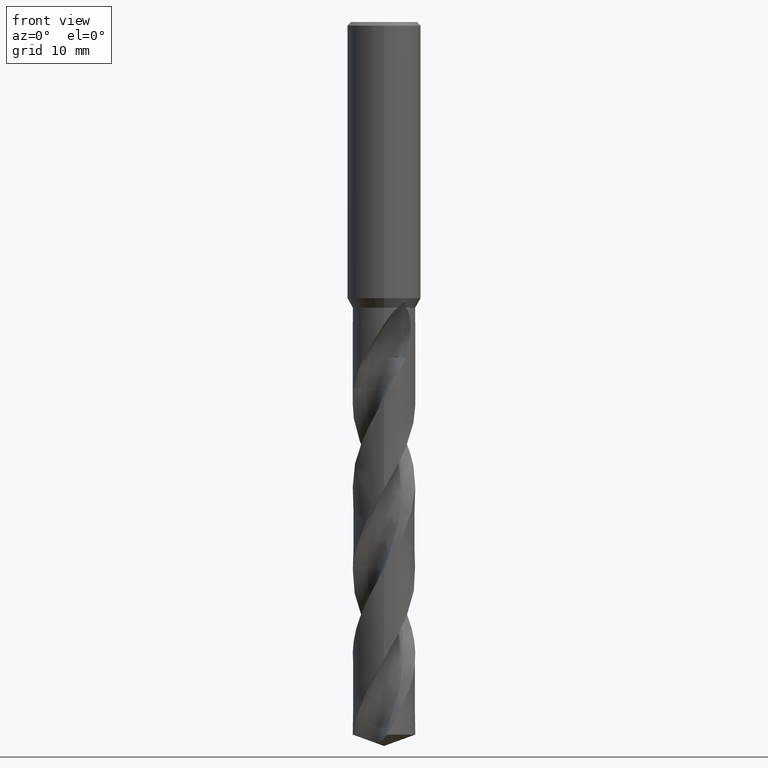
[diagram: clean part render]
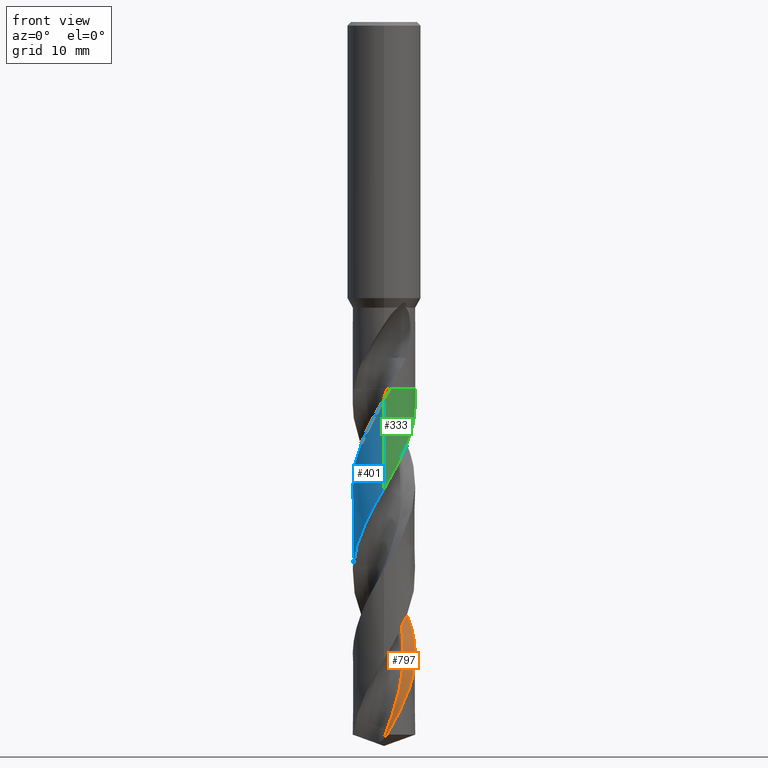
[diagram: same view with three faces highlighted in distinct colors, each labeled with its STEP entity id]
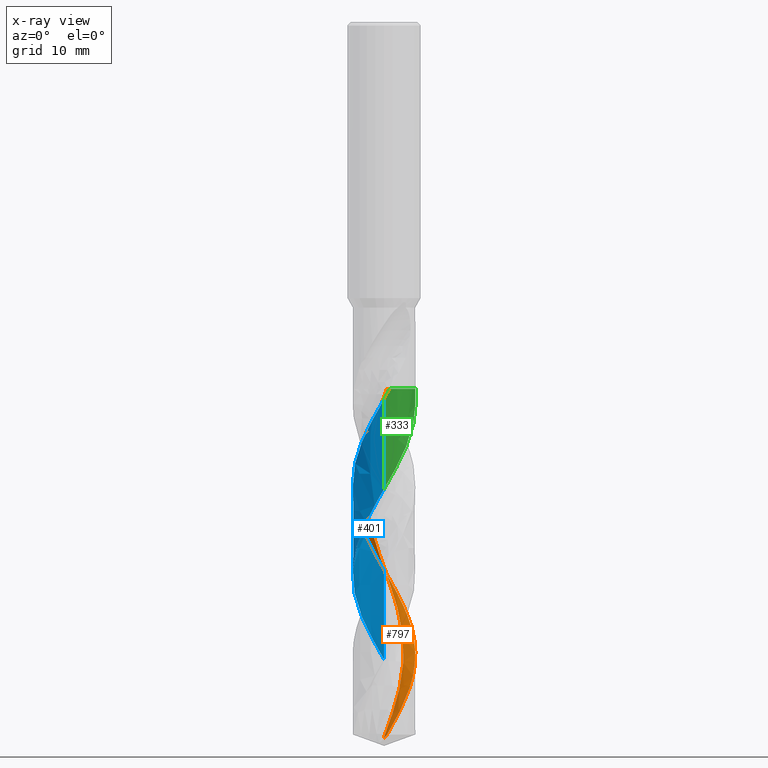
[diagram: x-ray of the same camera — body ghosted, the three highlighted faces saturated]
A machine part, front view with three faces highlighted in distinct colors.
The next image is the same camera in x-ray (body ghosted, the three faces saturated) — at least one of them is partly hidden behind the body in this view.
Their STEP definitions:

[orange] entity #797 — the highlighted face is a freeform B-spline surface patch.
#311=VERTEX_POINT('',#866);
#319=VERTEX_POINT('',#875);
#341=VERTEX_POINT('',#899);
#347=VERTEX_POINT('',#906);
#351=VERTEX_POINT('',#910);
#389=EDGE_CURVE('',#347,#351,#953,.T.);
#437=VERTEX_POINT('',#1005);
#561=EDGE_CURVE('',#679,#341,#1136,.T.);
#603=EDGE_CURVE('',#319,#437,#1180,.T.);
#625=EDGE_CURVE('',#341,#311,#1203,.T.);
#637=EDGE_CURVE('',#437,#347,#1216,.T.);
#679=VERTEX_POINT('',#1262);
#745=EDGE_CURVE('',#319,#311,#1339,.T.);
#797=ADVANCED_FACE('',(#1397),#1398,.F.);
#801=EDGE_CURVE('',#351,#679,#1402,.T.);
#866=CARTESIAN_POINT('',(-0.066713244249143,-3.21465235450932,-116.829710299826));
#875=CARTESIAN_POINT('',(0.483766653598224,-3.17071329745163,-59.805));
#899=CARTESIAN_POINT('',(1.35368516511973E-014,-3.49786451829037,-116.726881431846));
#906=CARTESIAN_POINT('',(-9.87801544449717E-012,-5.09990305292979,-61.5201351925711));
#910=CARTESIAN_POINT('',(3.69162621619305E-013,5.09995229847969,-89.2669255900557));
#953=B_SPLINE_CURVE_WITH_KNOTS('',3,(#3363,#3364,#3365,#3366,#3367,#3368,#3369,#3370,#3371,#3372,#3373,#3374,#3375,#3376,#3377,#3378,#3379,#3380,#3381,#3382,#3383,#3384,#3385,#3386,#3387,#3388,#3389,#3390,#3391,#3392,#3393,#3394,#3395,#3396,#3397,#3398,#3399,#3400,#3401,#3402,#3403,#3404,#3405,#3406,#3407,#3408,#3409,#3410,#3411,#3412,#3413,#3414,#3415,#3416,#3417,#3418,#3419,#3420,#3421,#3422,#3423,#3424,#3425,#3426,#3427,#3428,#3429,#3430,#3431,#3432,#3433,#3434,#3435,#3436,#3437,#3438,#3439,#3440,#3441,#3442,#3443,#3444),.UNSPECIFIED.,.F.,.F.,(4,2,2,2,2,2,2,2,2,2,2,2,2,2,2,2,2,2,2,2,2,2,2,2,2,2,2,2,2,2,2,2,2,2,2,2,2,2,2,2,4),(0.0,4.14104329746509,5.1334376347913,6.11528291473917,7.10258121901169,7.59785843939195,8.08695148999517,11.9847482895775,12.8716564850116,15.1934174228814,18.4630945648743,21.0037867103085,22.204067775897,24.5744180807575,25.5621589243223,26.7597083835918,29.0905476199931,32.0792533113766,34.486618398791,36.5655438168878,39.2058234736965,40.4383255813697,42.733264681222,43.7222695941222,44.9929680365756,47.2876923764747,51.2200953912867,52.9300297550307,54.236546523669,55.5844445632435,56.1770682086296,57.2878720121142,57.774830189745,58.6851692999778,60.2823420453938,60.5817047627874,61.706444448661,63.395358926402,64.2393373788554,64.6611505219739,65.0825691175168),.UNSPECIFIED.);
#1005=CARTESIAN_POINT('',(0.983743889133532,-5.0041211076893,-59.8049999999999));
#1136=B_SPLINE_CURVE_WITH_KNOTS('',3,(#4223,#4224,#4225,#4226,#4227,#4228,#4229,#4230),.UNSPECIFIED.,.F.,.F.,(4,2,2,4),(0.0,1.11475342637405,2.76679081055017,4.40235898835746),.UNSPECIFIED.);
#1180=B_SPLINE_CURVE_WITH_KNOTS('',3,(#4668,#4669,#4670,#4671,#4672,#4673),.UNSPECIFIED.,.F.,.F.,(4,2,4),(-6.7998813388337,-3.39994195813066,-0.0),.UNSPECIFIED.);
#1203=B_SPLINE_CURVE_WITH_KNOTS('',3,(#4758,#4759,#4760,#4761,#4762,#4763,#4764,#4765),.UNSPECIFIED.,.F.,.F.,(4,2,2,4),(0.0,1.11475342637405,2.76679081055017,4.40235898835746),.UNSPECIFIED.);
#1216=B_SPLINE_CURVE_WITH_KNOTS('',3,(#4785,#4786,#4787,#4788,#4789,#4790,#4791,#4792,#4793,#4794,#4795,#4796,#4797,#4798,#4799,#4800,#4801,#4802,#4803,#4804,#4805,#4806,#4807,#4808,#4809,#4810,#4811,#4812,#4813,#4814,#4815,#4816,#4817,#4818,#4819,#4820,#4821,#4822,#4823,#4824,#4825,#4826,#4827,#4828,#4829,#4830,#4831,#4832,#4833,#4834,#4835,#4836,#4837,#4838,#4839,#4840,#4841,#4842,#4843,#4844,#4845,#4846,#4847,#4848,#4849,#4850,#4851,#4852,#4853,#4854,#4855,#4856,#4857,#4858,#4859,#4860,#4861,#4862,#4863,#4864,#4865,#4866),.UNSPECIFIED.,.F.,.F.,(4,2,2,2,2,2,2,2,2,2,2,2,2,2,2,2,2,2,2,2,2,2,2,2,2,2,2,2,2,2,2,2,2,2,2,2,2,2,2,2,4),(0.0,4.14104329746509,5.1334376347913,6.11528291473917,7.10258121901169,7.59785843939195,8.08695148999517,11.9847482895775,12.8716564850116,15.1934174228814,18.4630945648743,21.0037867103085,22.204067775897,24.5744180807575,25.5621589243223,26.7597083835918,29.0905476199931,32.0792533113766,34.486618398791,36.5655438168878,39.2058234736965,40.4383255813697,42.733264681222,43.7222695941222,44.9929680365756,47.2876923764747,51.2200953912867,52.9300297550307,54.236546523669,55.5844445632435,56.1770682086296,57.2878720121142,57.774830189745,58.6851692999778,60.2823420453938,60.5817047627874,61.706444448661,63.395358926402,64.2393373788554,64.6611505219739,65.0825691175168),.UNSPECIFIED.);
#1262=CARTESIAN_POINT('',(0.500325752547323,-5.07539891450297,-116.143751805242));
#1339=B_SPLINE_CURVE_WITH_KNOTS('',3,(#7663,#7664,#7665,#7666,#7667,#7668,#7669,#7670,#7671,#7672,#7673,#7674,#7675,#7676,#7677,#7678,#7679,#7680,#7681,#7682,#7683,#7684,#7685,#7686,#7687,#7688,#7689,#7690,#7691,#7692,#7693,#7694,#7695,#7696,#7697,#7698,#7699,#7700,#7701,#7702,#7703,#7704,#7705,#7706,#7707,#7708,#7709,#7710,#7711,#7712,#7713,#7714,#7715,#7716,#7717,#7718,#7719,#7720,#7721,#7722,#7723,#7724,#7725),.UNSPECIFIED.,.F.,.F.,(4,2,2,2,2,2,2,2,2,2,2,2,1,2,1,2,1,2,1,2,1,2,1,2,1,2,1,2,1,2,2,2,2,2,2,4),(0.0,1.27084674611956,2.54169349223912,3.81254023835867,5.08338698447823,6.35423373059779,7.62508047671735,10.1667739689565,12.7084674611956,15.2501609534347,17.7918544456738,20.3335479379129,22.875241430152,25.4169349223912,27.9586284146303,30.5003219068694,33.0420153991085,35.5837088913476,38.1254023835867,40.6670958758259,43.208789368065,45.7504828603041,48.2921763525432,50.8338698447823,53.3755633370214,55.9172568292606,58.4589503214997,61.0006438137388,63.5423373059779,66.084030798217,68.6257242904561,71.1674177826953,73.7091112749344,76.2508047671735,78.7924982594126,81.3341917516517),.UNSPECIFIED.);
#1397=FACE_OUTER_BOUND('',#9057,.T.);
#1398=B_SPLINE_SURFACE_WITH_KNOTS('',3,3,((#9058,#9059,#9060,#9061,#9062,#9063,#9064,#9065,#9066,#9067,#9068,#9069,#9070,#9071,#9072,#9073,#9074,#9075,#9076,#9077,#9078,#9079,#9080,#9081,#9082,#9083,#9084,#9085,#9086,#9087,#9088,#9089,#9090,#9091,#9092,#9093,#9094,#9095,#9096,#9097,#9098,#9099,#9100,#9101,#9102,#9103,#9104,#9105,#9106,#9107,#9108,#9109,#9110,#9111,#9112,#9113,#9114,#9115,#9116,#9117,#9118,#9119,#9120,#9121),(#9122,#9123,#9124,#9125,#9126,#9127,#9128,#9129,#9130,#9131,#9132,#9133,#9134,#9135,#9136,#9137,#9138,#9139,#9140,#9141,#9142,#9143,#9144,#9145,#9146,#9147,#9148,#9149,#9150,#9151,#9152,#9153,#9154,#9155,#9156,#9157,#9158,#9159,#9160,#9161,#9162,#9163,#9164,#9165,#9166,#9167,#9168,#9169,#9170,#9171,#9172,#9173,#9174,#9175,#9176,#9177,#9178,#9179,#9180,#9181,#9182,#9183,#9184,#9185),(#9186,#9187,#9188,#9189,#9190,#9191,#9192,#9193,#9194,#9195,#9196,#9197,#9198,#9199,#9200,#9201,#9202,#9203,#9204,#9205,#9206,#9207,#9208,#9209,#9210,#9211,#9212,#9213,#9214,#9215,#9216,#9217,#9218,#9219,#9220,#9221,#9222,#9223,#9224,#9225,#9226,#9227,#9228,#9229,#9230,#9231,#9232,#9233,#9234,#9235,#9236,#9237,#9238,#9239,#9240,#9241,#9242,#9243,#9244,#9245,#9246,#9247,#9248,#9249),(#9250,#9251,#9252,#9253,#9254,#9255,#9256,#9257,#9258,#9259,#9260,#9261,#9262,#9263,#9264,#9265,#9266,#9267,#9268,#9269,#9270,#9271,#9272,#9273,#9274,#9275,#9276,#9277,#9278,#9279,#9280,#9281,#9282,#9283,#9284,#9285,#9286,#9287,#9288,#9289,#9290,#9291,#9292,#9293,#9294,#9295,#9296,#9297,#9298,#9299,#9300,#9301,#9302,#9303,#9304,#9305,#9306,#9307,#9308,#9309,#9310,#9311,#9312,#9313)),.UNSPECIFIED.,.F.,.F.,.F.,(4,4),(4,1,2,2,2,2,2,2,2,2,2,2,2,1,2,1,2,1,2,1,2,1,2,1,2,1,2,1,2,1,2,2,2,2,2,2,4),(2.5495217373904E-015,6.8),(0.0,0.635423373059779,1.27084674611956,2.54169349223912,3.81254023835867,5.08338698447823,6.35423373059779,7.62508047671735,10.1667739689565,12.7084674611956,15.2501609534347,17.7918544456738,20.3335479379129,22.875241430152,25.4169349223912,27.9586284146303,30.5003219068694,33.0420153991085,35.5837088913476,38.1254023835867,40.6670958758259,43.208789368065,45.7504828603041,48.2921763525432,50.8338698447823,53.3755633370214,55.9172568292606,58.4589503214997,61.0006438137388,63.5423373059779,66.084030798217,68.6257242904561,71.1674177826953,73.7091112749344,76.2508047671735,78.7924982594126,81.3341917516517),.UNSPECIFIED.);
#1402=B_SPLINE_CURVE_WITH_KNOTS('',3,(#9318,#9319,#9320,#9321,#9322,#9323,#9324,#9325,#9326,#9327,#9328,#9329,#9330,#9331,#9332,#9333,#9334,#9335,#9336,#9337,#9338,#9339,#9340,#9341,#9342,#9343,#9344,#9345,#9346,#9347,#9348,#9349,#9350,#9351,#9352,#9353,#9354,#9355,#9356,#9357,#9358,#9359,#9360,#9361,#9362,#9363,#9364,#9365,#9366,#9367,#9368,#9369,#9370,#9371,#9372,#9373,#9374,#9375,#9376,#9377,#9378,#9379,#9380,#9381,#9382,#9383,#9384,#9385,#9386,#9387,#9388,#9389,#9390,#9391,#9392,#9393,#9394,#9395,#9396,#9397,#9398,#9399),.UNSPECIFIED.,.F.,.F.,(4,2,2,2,2,2,2,2,2,2,2,2,2,2,2,2,2,2,2,2,2,2,2,2,2,2,2,2,2,2,2,2,2,2,2,2,2,2,2,2,4),(0.0,4.14104329746509,5.1334376347913,6.11528291473917,7.10258121901169,7.59785843939195,8.08695148999517,11.9847482895775,12.8716564850116,15.1934174228814,18.4630945648743,21.0037867103085,22.204067775897,24.5744180807575,25.5621589243223,26.7597083835918,29.0905476199931,32.0792533113766,34.486618398791,36.5655438168878,39.2058234736965,40.4383255813697,42.733264681222,43.7222695941222,44.9929680365756,47.2876923764747,51.2200953912867,52.9300297550307,54.236546523669,55.5844445632435,56.1770682086296,57.2878720121142,57.774830189745,58.6851692999778,60.2823420453938,60.5817047627874,61.706444448661,63.395358926402,64.2393373788554,64.6611505219739,65.0825691175168),.UNSPECIFIED.);
#3363=CARTESIAN_POINT('',(0.984615721093342,-5.00394963548128,-59.8034611979805));
#3364=CARTESIAN_POINT('',(0.307365696007739,-5.13721273568271,-60.9988411811889));
#3365=CARTESIAN_POINT('',(-0.390027474523641,-5.1316109911501,-62.1825914634078));
#3366=CARTESIAN_POINT('',(-1.22690013246275,-4.95289145591273,-63.664512075471));
#3367=CARTESIAN_POINT('',(-1.38691039205613,-4.91048923393041,-63.9508396228614));
#3368=CARTESIAN_POINT('',(-1.70057109634443,-4.81081224238041,-64.5207568372864));
#3369=CARTESIAN_POINT('',(-1.85406515780194,-4.75376583213466,-64.8040135393066));
#3370=CARTESIAN_POINT('',(-2.15583230940774,-4.62477489115283,-65.3725129866243));
#3371=CARTESIAN_POINT('',(-2.30393739957929,-4.55280674320421,-65.6574151195222));
#3372=CARTESIAN_POINT('',(-2.52075406705958,-4.43415269895794,-66.0854010466048));
#3373=CARTESIAN_POINT('',(-2.59221824906642,-4.39275777212071,-66.2283465320319));
#3374=CARTESIAN_POINT('',(-2.7322063870821,-4.30706401742069,-66.5124944388955));
#3375=CARTESIAN_POINT('',(-2.80072005980739,-4.26282998283061,-66.6536161160388));
#3376=CARTESIAN_POINT('',(-3.4054446960595,-3.85153422151814,-67.9200780072653));
#3377=CARTESIAN_POINT('',(-3.86810949047536,-3.38665348890165,-69.0358307684239));
#3378=CARTESIAN_POINT('',(-4.31361699380113,-2.72465738829204,-70.417047829199));
#3379=CARTESIAN_POINT('',(-4.39077373412122,-2.59848440754603,-70.6728141621925));
#3380=CARTESIAN_POINT('',(-4.64962390442051,-2.13069199973769,-71.5995088111081));
#3381=CARTESIAN_POINT('',(-4.79792612346462,-1.77175658516868,-72.2690477661175));
#3382=CARTESIAN_POINT('',(-5.05385652663433,-0.874800618872353,-73.8835514034587));
#3383=CARTESIAN_POINT('',(-5.11830626046958,-0.329997538553156,-74.8200643429363));
#3384=CARTESIAN_POINT('',(-5.07764854471503,0.637117580703056,-76.4985974388635));
#3385=CARTESIAN_POINT('',(-5.00727856144861,1.05655122214078,-77.2291116088395));
#3386=CARTESIAN_POINT('',(-4.82817687695303,1.65473901569568,-78.3090386388574));
#3387=CARTESIAN_POINT('',(-4.75950669136042,1.842942524065,-78.6550103993592));
#3388=CARTESIAN_POINT('',(-4.52303312323065,2.3890555569421,-79.686484807823));
#3389=CARTESIAN_POINT('',(-4.32434177705929,2.73237676037193,-80.3699951430725));
#3390=CARTESIAN_POINT('',(-3.98927083451616,3.18154945645937,-81.3398248610072));
#3391=CARTESIAN_POINT('',(-3.88434421164911,3.30884263556348,-81.6247992947485));
#3392=CARTESIAN_POINT('',(-3.63890593220288,3.57878812653543,-82.2558123540623));
#3393=CARTESIAN_POINT('',(-3.4959448377415,3.71855046319601,-82.6010979641617));
#3394=CARTESIAN_POINT('',(-3.05196531867536,4.10437566727846,-83.6206542250272));
#3395=CARTESIAN_POINT('',(-2.73029803515488,4.32507203899689,-84.2930540685719));
#3396=CARTESIAN_POINT('',(-1.94562365254368,4.74055329134394,-85.8297977553988));
#3397=CARTESIAN_POINT('',(-1.47318289291131,4.90788895877369,-86.6872314827507));
#3398=CARTESIAN_POINT('',(-0.590654244772333,5.08149988424244,-88.2468640705715));
#3399=CARTESIAN_POINT('',(-0.188794628176107,5.11228820735373,-88.9399341112138));
#3400=CARTESIAN_POINT('',(0.559759515568674,5.08101697342073,-90.2357384617278));
#3401=CARTESIAN_POINT('',(0.903921087784963,5.03115733973798,-90.8347844650828));
#3402=CARTESIAN_POINT('',(1.66692148158598,4.83989833275133,-92.1987763414625));
#3403=CARTESIAN_POINT('',(2.07856697974262,4.67798675425078,-92.9582763710679));
#3404=CARTESIAN_POINT('',(2.64479354864302,4.36543624522793,-94.0768407755821));
#3405=CARTESIAN_POINT('',(2.81864720639048,4.25524128921156,-94.4322108218991));
#3406=CARTESIAN_POINT('',(3.29557732002524,3.91091528400837,-95.4517562642639));
#3407=CARTESIAN_POINT('',(3.57986041081607,3.65253634972128,-96.1141020746973));
#3408=CARTESIAN_POINT('',(3.94154954353712,3.24054045165905,-97.0630825254375));
#3409=CARTESIAN_POINT('',(4.04441970275086,3.11120919674198,-97.3485947813406));
#3410=CARTESIAN_POINT('',(4.26476685173776,2.80472653998218,-98.0014546075422));
#3411=CARTESIAN_POINT('',(4.37769159644647,2.62496217903343,-98.3679044234995));
#3412=CARTESIAN_POINT('',(4.66210950480143,2.1026087238716,-99.3986999531826));
#3413=CARTESIAN_POINT('',(4.80684658154235,1.74665454723975,-100.061112374767));
#3414=CARTESIAN_POINT('',(5.08777894341737,0.745350615675317,-101.861039589159));
#3415=CARTESIAN_POINT('',(5.14130123851167,0.0849274306263313,-102.987685625339));
#3416=CARTESIAN_POINT('',(5.03663356985857,-0.850587268237581,-104.619201339284));
#3417=CARTESIAN_POINT('',(4.98115777328956,-1.13115428637271,-105.112380210588));
#3418=CARTESIAN_POINT('',(4.84221682809918,-1.61567816082454,-105.984105336487));
#3419=CARTESIAN_POINT('',(4.76865639328864,-1.82134967203178,-106.361091359688));
#3420=CARTESIAN_POINT('',(4.59299797586474,-2.22819284498688,-107.12850259153));
#3421=CARTESIAN_POINT('',(4.49021965360731,-2.42866527512335,-107.517934045215));
#3422=CARTESIAN_POINT('',(4.32367319586127,-2.70656494423179,-108.078955095898));
#3423=CARTESIAN_POINT('',(4.27035596388488,-2.78992908430608,-108.250216582897));
#3424=CARTESIAN_POINT('',(4.11023765137784,-3.0249294436641,-108.742722878832));
#3425=CARTESIAN_POINT('',(3.99753746549748,-3.17237454321302,-109.063721025939));
#3426=CARTESIAN_POINT('',(3.82423077909736,-3.37516651800815,-109.525662385665));
#3427=CARTESIAN_POINT('',(3.76993753764375,-3.43570447760455,-109.666424190173));
#3428=CARTESIAN_POINT('',(3.61004955240451,-3.60562593525932,-110.070390400061));
#3429=CARTESIAN_POINT('',(3.50099915961638,-3.71160261612589,-110.333417614753));
#3430=CARTESIAN_POINT('',(3.188077334546,-3.98963153110709,-111.058423804277));
#3431=CARTESIAN_POINT('',(2.97514299357126,-4.15085295036524,-111.519528142659));
#3432=CARTESIAN_POINT('',(2.70843999995068,-4.32166382278008,-112.06781674264));
#3433=CARTESIAN_POINT('',(2.66595359116778,-4.34800155985948,-112.154345772336));
#3434=CARTESIAN_POINT('',(2.46203892377143,-4.47029818135619,-112.566108848525));
#3435=CARTESIAN_POINT('',(2.29579661952019,-4.55790622532541,-112.891239347689));
#3436=CARTESIAN_POINT('',(1.86883829719403,-4.75361777156848,-113.704858417135));
#3437=CARTESIAN_POINT('',(1.60319173704951,-4.84967012266813,-114.192333613001));
#3438=CARTESIAN_POINT('',(1.19483574813587,-4.96006176980263,-114.924636602978));
#3439=CARTESIAN_POINT('',(1.05728371149951,-4.9911934218076,-115.168508084206));
#3440=CARTESIAN_POINT('',(0.849286081812538,-5.02928101651975,-115.534435221161));
#3441=CARTESIAN_POINT('',(0.779718409641052,-5.04053523456526,-115.656357244257));
#3442=CARTESIAN_POINT('',(0.640229297088901,-5.0601440518522,-115.900129400561));
#3443=CARTESIAN_POINT('',(0.57034778148858,-5.06849602311188,-116.021878256104));
#3444=CARTESIAN_POINT('',(0.500325752547314,-5.07539891450295,-116.143751805242));
#4223=CARTESIAN_POINT('',(1.47681063287163,-7.05967636330713,-115.374868627843));
#4224=CARTESIAN_POINT('',(1.29579907073617,-6.75848081356039,-115.495662160731));
#4225=CARTESIAN_POINT('',(1.12672898950998,-6.45044167877712,-115.616992463477));
#4226=CARTESIAN_POINT('',(0.738525806600912,-5.67047313484042,-115.919462454207));
#4227=CARTESIAN_POINT('',(0.535071422586038,-5.1921798577668,-116.100837528601));
#4228=CARTESIAN_POINT('',(0.188587793666139,-4.21432703577129,-116.465357390586));
#4229=CARTESIAN_POINT('',(0.0458732123133288,-3.71798451607497,-116.647402042571));
#4230=CARTESIAN_POINT('',(-0.0667132441520302,-3.21465235449966,-116.829710299831));
#4668=CARTESIAN_POINT('',(0.483766653694651,-3.17071329742526,-59.805));
#4669=CARTESIAN_POINT('',(0.782127852742988,-4.26403969922319,-59.805));
#4670=CARTESIAN_POINT('',(1.08014440121316,-5.3574608102744,-59.8050000039333));
#4671=CARTESIAN_POINT('',(1.67548425647857,-7.5444698564351,-59.8050000039333));
#4672=CARTESIAN_POINT('',(1.97281092845424,-8.63807012752527,-59.805));
#4673=CARTESIAN_POINT('',(2.26979885986486,-9.73177884540146,-59.805));
#4758=CARTESIAN_POINT('',(1.47681063287163,-7.05967636330713,-115.374868627843));
#4759=CARTESIAN_POINT('',(1.29579907073617,-6.75848081356039,-115.495662160731));
#4760=CARTESIAN_POINT('',(1.12672898950998,-6.45044167877712,-115.616992463477));
#4761=CARTESIAN_POINT('',(0.738525806600912,-5.67047313484042,-115.919462454207));
#4762=CARTESIAN_POINT('',(0.535071422586038,-5.1921798577668,-116.100837528601));
#4763=CARTESIAN_POINT('',(0.188587793666139,-4.21432703577129,-116.465357390586));
#4764=CARTESIAN_POINT('',(0.0458732123133288,-3.71798451607497,-116.647402042571));
#4765=CARTESIAN_POINT('',(-0.0667132441520302,-3.21465235449966,-116.829710299831));
#4785=CARTESIAN_POINT('',(0.984615721093342,-5.00394963548128,-59.8034611979805));
#4786=CARTESIAN_POINT('',(0.307365696007739,-5.13721273568271,-60.9988411811889));
#4787=CARTESIAN_POINT('',(-0.390027474523641,-5.1316109911501,-62.1825914634078));
#4788=CARTESIAN_POINT('',(-1.22690013246275,-4.95289145591273,-63.664512075471));
#4789=CARTESIAN_POINT('',(-1.38691039205613,-4.91048923393041,-63.9508396228614));
#4790=CARTESIAN_POINT('',(-1.70057109634443,-4.81081224238041,-64.5207568372864));
#4791=CARTESIAN_POINT('',(-1.85406515780194,-4.75376583213466,-64.8040135393066));
#4792=CARTESIAN_POINT('',(-2.15583230940774,-4.62477489115283,-65.3725129866243));
#4793=CARTESIAN_POINT('',(-2.30393739957929,-4.55280674320421,-65.6574151195222));
#4794=CARTESIAN_POINT('',(-2.52075406705958,-4.43415269895794,-66.0854010466048));
#4795=CARTESIAN_POINT('',(-2.59221824906642,-4.39275777212071,-66.2283465320319));
#4796=CARTESIAN_POINT('',(-2.7322063870821,-4.30706401742069,-66.5124944388955));
#4797=CARTESIAN_POINT('',(-2.80072005980739,-4.26282998283061,-66.6536161160388));
#4798=CARTESIAN_POINT('',(-3.4054446960595,-3.85153422151814,-67.9200780072653));
#4799=CARTESIAN_POINT('',(-3.86810949047536,-3.38665348890165,-69.0358307684239));
#4800=CARTESIAN_POINT('',(-4.31361699380113,-2.72465738829204,-70.417047829199));
#4801=CARTESIAN_POINT('',(-4.39077373412122,-2.59848440754603,-70.6728141621925));
#4802=CARTESIAN_POINT('',(-4.64962390442051,-2.13069199973769,-71.5995088111081));
#4803=CARTESIAN_POINT('',(-4.79792612346462,-1.77175658516868,-72.2690477661175));
#4804=CARTESIAN_POINT('',(-5.05385652663433,-0.874800618872353,-73.8835514034587));
#4805=CARTESIAN_POINT('',(-5.11830626046958,-0.329997538553156,-74.8200643429363));
#4806=CARTESIAN_POINT('',(-5.07764854471503,0.637117580703056,-76.4985974388635));
#4807=CARTESIAN_POINT('',(-5.00727856144861,1.05655122214078,-77.2291116088395));
#4808=CARTESIAN_POINT('',(-4.82817687695303,1.65473901569568,-78.3090386388574));
#4809=CARTESIAN_POINT('',(-4.75950669136042,1.842942524065,-78.6550103993592));
#4810=CARTESIAN_POINT('',(-4.52303312323065,2.3890555569421,-79.686484807823));
#4811=CARTESIAN_POINT('',(-4.32434177705929,2.73237676037193,-80.3699951430725));
#4812=CARTESIAN_POINT('',(-3.98927083451616,3.18154945645937,-81.3398248610072));
#4813=CARTESIAN_POINT('',(-3.88434421164911,3.30884263556348,-81.6247992947485));
#4814=CARTESIAN_POINT('',(-3.63890593220288,3.57878812653543,-82.2558123540623));
#4815=CARTESIAN_POINT('',(-3.4959448377415,3.71855046319601,-82.6010979641617));
#4816=CARTESIAN_POINT('',(-3.05196531867536,4.10437566727846,-83.6206542250272));
#4817=CARTESIAN_POINT('',(-2.73029803515488,4.32507203899689,-84.2930540685719));
#4818=CARTESIAN_POINT('',(-1.94562365254368,4.74055329134394,-85.8297977553988));
#4819=CARTESIAN_POINT('',(-1.47318289291131,4.90788895877369,-86.6872314827507));
#4820=CARTESIAN_POINT('',(-0.590654244772333,5.08149988424244,-88.2468640705715));
#4821=CARTESIAN_POINT('',(-0.188794628176107,5.11228820735373,-88.9399341112138));
#4822=CARTESIAN_POINT('',(0.559759515568674,5.08101697342073,-90.2357384617278));
#4823=CARTESIAN_POINT('',(0.903921087784963,5.03115733973798,-90.8347844650828));
#4824=CARTESIAN_POINT('',(1.66692148158598,4.83989833275133,-92.1987763414625));
#4825=CARTESIAN_POINT('',(2.07856697974262,4.67798675425078,-92.9582763710679));
#4826=CARTESIAN_POINT('',(2.64479354864302,4.36543624522793,-94.0768407755821));
#4827=CARTESIAN_POINT('',(2.81864720639048,4.25524128921156,-94.4322108218991));
#4828=CARTESIAN_POINT('',(3.29557732002524,3.91091528400837,-95.4517562642639));
#4829=CARTESIAN_POINT('',(3.57986041081607,3.65253634972128,-96.1141020746973));
#4830=CARTESIAN_POINT('',(3.94154954353712,3.24054045165905,-97.0630825254375));
#4831=CARTESIAN_POINT('',(4.04441970275086,3.11120919674198,-97.3485947813406));
#4832=CARTESIAN_POINT('',(4.26476685173776,2.80472653998218,-98.0014546075422));
#4833=CARTESIAN_POINT('',(4.37769159644647,2.62496217903343,-98.3679044234995));
#4834=CARTESIAN_POINT('',(4.66210950480143,2.1026087238716,-99.3986999531826));
#4835=CARTESIAN_POINT('',(4.80684658154235,1.74665454723975,-100.061112374767));
#4836=CARTESIAN_POINT('',(5.08777894341737,0.745350615675317,-101.861039589159));
#4837=CARTESIAN_POINT('',(5.14130123851167,0.0849274306263313,-102.987685625339));
#4838=CARTESIAN_POINT('',(5.03663356985857,-0.850587268237581,-104.619201339284));
#4839=CARTESIAN_POINT('',(4.98115777328956,-1.13115428637271,-105.112380210588));
#4840=CARTESIAN_POINT('',(4.84221682809918,-1.61567816082454,-105.984105336487));
#4841=CARTESIAN_POINT('',(4.76865639328864,-1.82134967203178,-106.361091359688));
#4842=CARTESIAN_POINT('',(4.59299797586474,-2.22819284498688,-107.12850259153));
#4843=CARTESIAN_POINT('',(4.49021965360731,-2.42866527512335,-107.517934045215));
#4844=CARTESIAN_POINT('',(4.32367319586127,-2.70656494423179,-108.078955095898));
#4845=CARTESIAN_POINT('',(4.27035596388488,-2.78992908430608,-108.250216582897));
#4846=CARTESIAN_POINT('',(4.11023765137784,-3.0249294436641,-108.742722878832));
#4847=CARTESIAN_POINT('',(3.99753746549748,-3.17237454321302,-109.063721025939));
#4848=CARTESIAN_POINT('',(3.82423077909736,-3.37516651800815,-109.525662385665));
#4849=CARTESIAN_POINT('',(3.76993753764375,-3.43570447760455,-109.666424190173));
#4850=CARTESIAN_POINT('',(3.61004955240451,-3.60562593525932,-110.070390400061));
#4851=CARTESIAN_POINT('',(3.50099915961638,-3.71160261612589,-110.333417614753));
#4852=CARTESIAN_POINT('',(3.188077334546,-3.98963153110709,-111.058423804277));
#4853=CARTESIAN_POINT('',(2.97514299357126,-4.15085295036524,-111.519528142659));
#4854=CARTESIAN_POINT('',(2.70843999995068,-4.32166382278008,-112.06781674264));
#4855=CARTESIAN_POINT('',(2.66595359116778,-4.34800155985948,-112.154345772336));
#4856=CARTESIAN_POINT('',(2.46203892377143,-4.47029818135619,-112.566108848525));
#4857=CARTESIAN_POINT('',(2.29579661952019,-4.55790622532541,-112.891239347689));
#4858=CARTESIAN_POINT('',(1.86883829719403,-4.75361777156848,-113.704858417135));
#4859=CARTESIAN_POINT('',(1.60319173704951,-4.84967012266813,-114.192333613001));
#4860=CARTESIAN_POINT('',(1.19483574813587,-4.96006176980263,-114.924636602978));
#4861=CARTESIAN_POINT('',(1.05728371149951,-4.9911934218076,-115.168508084206));
#4862=CARTESIAN_POINT('',(0.849286081812538,-5.02928101651975,-115.534435221161));
#4863=CARTESIAN_POINT('',(0.779718409641052,-5.04053523456526,-115.656357244257));
#4864=CARTESIAN_POINT('',(0.640229297088901,-5.0601440518522,-115.900129400561));
#4865=CARTESIAN_POINT('',(0.57034778148858,-5.06849602311188,-116.021878256104));
#4866=CARTESIAN_POINT('',(0.500325752547314,-5.07539891450295,-116.143751805242));
#7663=CARTESIAN_POINT('',(2.40416305596356,-2.52583694403645,-54.7162));
#7664=CARTESIAN_POINT('',(2.13452206408612,-2.50888356936328,-55.0453790691825));
#7665=CARTESIAN_POINT('',(1.93198421891544,-2.52558221228198,-55.3736297835603));
#7666=CARTESIAN_POINT('',(1.6592907188685,-2.62118615837136,-56.0302203805336));
#7667=CARTESIAN_POINT('',(1.56764653768154,-2.68892562940949,-56.3582870304646));
#7668=CARTESIAN_POINT('',(1.4517390389522,-2.87500194842783,-57.0216052325561));
#7669=CARTESIAN_POINT('',(1.36086056683467,-2.9443459931971,-57.353426439878));
#7670=CARTESIAN_POINT('',(1.13480147468256,-3.03159153624726,-58.012809100934));
#7671=CARTESIAN_POINT('',(1.01554777676926,-3.06521751326689,-58.3421048823683));
#7672=CARTESIAN_POINT('',(0.770800570265272,-3.11452127317813,-58.999353477102));
#7673=CARTESIAN_POINT('',(0.65194005328406,-3.13819063394278,-59.3284010648809));
#7674=CARTESIAN_POINT('',(0.419300005024396,-3.18393064450167,-59.988243413498));
#7675=CARTESIAN_POINT('',(0.30081880246897,-3.19890574759793,-60.3181191224188));
#7676=CARTESIAN_POINT('',(-0.056135844405576,-3.2233204310904,-61.3074711949228));
#7677=CARTESIAN_POINT('',(-0.298493706769256,-3.206653550682,-61.9668622165145));
#7678=CARTESIAN_POINT('',(-0.770965525130801,-3.12835571819219,-63.2850097284002));
#7679=CARTESIAN_POINT('',(-1.00324967213778,-3.05868697900726,-63.9442033319799));
#7680=CARTESIAN_POINT('',(-1.4464233719898,-2.87950351447036,-65.2629472685881));
#7681=CARTESIAN_POINT('',(-1.65753706619742,-2.75991285504195,-65.9222433553619));
#7682=CARTESIAN_POINT('',(-2.04984986706054,-2.48670518717719,-67.2406877100124));
#7683=CARTESIAN_POINT('',(-2.22907993249296,-2.32300694548385,-67.8999997093854));
#7684=CARTESIAN_POINT('',(-2.55016826090063,-1.9676833682403,-69.2186700936505));
#7685=CARTESIAN_POINT('',(-2.68909164535803,-1.76956269442067,-69.8778134418226));
#7686=CARTESIAN_POINT('',(-2.92796539948245,-1.35837430001565,-71.1962730067231));
#7687=CARTESIAN_POINT('',(-3.10788030364009,-0.905714196165439,-72.5153067291772));
#7688=CARTESIAN_POINT('',(-3.18504356818098,-0.427856281559478,-73.8331140780605));
#7689=CARTESIAN_POINT('',(-3.22641789930418,0.0440943209444422,-75.1517646490794));
#7690=CARTESIAN_POINT('',(-3.19513950645448,0.529230056236099,-76.4710787327387));
#7691=CARTESIAN_POINT('',(-3.05734411844839,0.993604234455079,-77.788979151107));
#7692=CARTESIAN_POINT('',(-2.88918417985052,1.43699273253564,-79.1074896510165));
#7693=CARTESIAN_POINT('',(-2.65041939185217,1.86065206790404,-80.4266758784825));
#7694=CARTESIAN_POINT('',(-2.32533569417196,2.21956658672777,-81.7445544240622));
#7695=CARTESIAN_POINT('',(-1.98197313091896,2.54647722634938,-83.0631188791242));
#7696=CARTESIAN_POINT('',(-1.58334533138561,2.82499168231085,-84.3823484075522));
#7697=CARTESIAN_POINT('',(-1.13482409285264,3.00767522519798,-85.7002306330587));
#7698=CARTESIAN_POINT('',(-0.683715521954006,3.15360382848412,-87.0187757506905));
#7699=CARTESIAN_POINT('',(-0.203789647354989,3.23200711297506,-88.3379923270516));
#7700=CARTESIAN_POINT('',(0.279599783847384,3.20244262187172,-89.655877603375));
#7701=CARTESIAN_POINT('',(0.749414619230502,3.13860296351913,-90.9744329320282));
#7702=CARTESIAN_POINT('',(1.21596524531006,3.00140575151373,-92.2936518557188));
#7703=CARTESIAN_POINT('',(1.63887204792599,2.76542986323138,-93.6115253599088));
#7704=CARTESIAN_POINT('',(2.03470707899502,2.50448382284656,-94.9300645813711));
#7705=CARTESIAN_POINT('',(2.39584232590063,2.17885810363837,-96.2492870990517));
#7706=CARTESIAN_POINT('',(2.67484048024947,1.78298132318157,-97.5672013702252));
#7707=CARTESIAN_POINT('',(2.91855067450002,1.37621250951635,-98.8857935812417));
#7708=CARTESIAN_POINT('',(3.10297022759755,0.926190534424411,-100.204996461901));
#7709=CARTESIAN_POINT('',(3.18335148883668,0.448841859609332,-101.52278409564));
#7710=CARTESIAN_POINT('',(3.22764487581939,-0.0228435708357756,-102.841233575697));
#7711=CARTESIAN_POINT('',(3.19914009912766,-0.508256546653627,-104.16052765071));
#7712=CARTESIAN_POINT('',(3.06229504053997,-0.973947073433946,-105.478594975855));
#7713=CARTESIAN_POINT('',(2.89386817722305,-1.41867128271715,-106.797234467356));
#7714=CARTESIAN_POINT('',(2.77729144107486,-1.63119598350252,-107.456642430394));
#7715=CARTESIAN_POINT('',(2.50581597186482,-2.02573135823131,-108.775087658327));
#7716=CARTESIAN_POINT('',(2.34385654398343,-2.20643647057957,-109.434328104513));
#7717=CARTESIAN_POINT('',(1.99343856171104,-2.53166271775215,-110.752936635585));
#7718=CARTESIAN_POINT('',(1.79573766224029,-2.67214856097973,-111.412178171078));
#7719=CARTESIAN_POINT('',(1.38204665381907,-2.91157503276333,-112.730689791238));
#7720=CARTESIAN_POINT('',(1.15755514780364,-3.00425950069469,-113.390111183191));
#7721=CARTESIAN_POINT('',(0.699210884867895,-3.14382574691478,-114.708795277507));
#7722=CARTESIAN_POINT('',(0.461002393995051,-3.18559833549283,-115.367753105342));
#7723=CARTESIAN_POINT('',(-0.011509210282043,-3.22907269751735,-116.685377556545));
#7724=CARTESIAN_POINT('',(-0.256522287655739,-3.21072705776485,-117.344654872341));
#7725=CARTESIAN_POINT('',(-0.497213133102351,-3.16056279282969,-118.003324568109));
#9057=EDGE_LOOP('',(#10350,#10351,#10352,#10353,#10354,#10355,#10356));
#9058=CARTESIAN_POINT('',(2.40416305603426,-2.52583694396574,-54.7162));
#9059=CARTESIAN_POINT('',(2.26934256009555,-2.51736025662915,-54.8807895345912));
#9060=CARTESIAN_POINT('',(2.03303196801405,-2.51783258246368,-55.2096299203409));
#9061=CARTESIAN_POINT('',(1.86381084397541,-2.54948319873097,-55.5377774328026));
#9062=CARTESIAN_POINT('',(1.65929071894585,-2.62118615831493,-56.0302203805354));
#9063=CARTESIAN_POINT('',(1.56764653775866,-2.68892562933941,-56.3582870304654));
#9064=CARTESIAN_POINT('',(1.45173903903685,-2.87500194838032,-57.0216052325551));
#9065=CARTESIAN_POINT('',(1.36086056692049,-2.94434599315281,-57.353426439878));
#9066=CARTESIAN_POINT('',(1.13480147477213,-3.03159153619545,-58.0128091009341));
#9067=CARTESIAN_POINT('',(1.01554777685974,-3.06521751322669,-58.3421048823682));
#9068=CARTESIAN_POINT('',(0.770800570359519,-3.11452127314169,-58.999353477102));
#9069=CARTESIAN_POINT('',(0.651940053380065,-3.13819063390916,-59.3284010648808));
#9070=CARTESIAN_POINT('',(0.419300005120401,-3.18393064447934,-59.9882434134979));
#9071=CARTESIAN_POINT('',(0.300818802563757,-3.19890574757721,-60.3181191224188));
#9072=CARTESIAN_POINT('',(-0.0561358442995015,-3.22332043108097,-61.3074711949227));
#9073=CARTESIAN_POINT('',(-0.298493706684453,-3.20665355067232,-61.9668622165145));
#9074=CARTESIAN_POINT('',(-0.770965525015899,-3.12835571821261,-63.2850097284001));
#9075=CARTESIAN_POINT('',(-1.00324967203408,-3.05868697902713,-63.9442033319799));
#9076=CARTESIAN_POINT('',(-1.44642337190115,-2.87950351450528,-65.2629472685881));
#9077=CARTESIAN_POINT('',(-1.65753706610974,-2.75991285508626,-65.9222433553618));
#9078=CARTESIAN_POINT('',(-2.04984986697285,-2.48670518722903,-67.2406877100123));
#9079=CARTESIAN_POINT('',(-2.22907993240308,-2.32300694554642,-67.8999997093854));
#9080=CARTESIAN_POINT('',(-2.55016826084085,-1.96768336831039,-69.2186700936505));
#9081=CARTESIAN_POINT('',(-2.68909164529986,-1.76956269450577,-69.8778134418376));
#9082=CARTESIAN_POINT('',(-2.92796539942427,-1.35837430009322,-71.196273006708));
#9083=CARTESIAN_POINT('',(-3.10788030360602,-0.9057141962618,-72.5153067291847));
#9084=CARTESIAN_POINT('',(-3.18504356815242,-0.427856281657971,-73.8331140780605));
#9085=CARTESIAN_POINT('',(-3.22641789929819,0.0440943208459494,-75.1517646490793));
#9086=CARTESIAN_POINT('',(-3.19513950645588,0.529230056141259,-76.4710787327537));
#9087=CARTESIAN_POINT('',(-3.05734411847172,0.993604234343771,-77.7889791510768));
#9088=CARTESIAN_POINT('',(-2.88918417988137,1.43699273245443,-79.1074896510465));
#9089=CARTESIAN_POINT('',(-2.65041939190303,1.86065206781025,-80.4266758784674));
#9090=CARTESIAN_POINT('',(-2.32533569423053,2.21956658664521,-81.7445544240621));
#9091=CARTESIAN_POINT('',(-1.98197313099258,2.54647722628187,-83.0631188791241));
#9092=CARTESIAN_POINT('',(-1.58334533146498,2.82499168224715,-84.3823484075521));
#9093=CARTESIAN_POINT('',(-1.13482409294472,3.00767522515897,-85.7002306330587));
#9094=CARTESIAN_POINT('',(-0.683715522046082,3.15360382844511,-87.0187757506904));
#9095=CARTESIAN_POINT('',(-0.203789647452122,3.23200711295891,-88.3379923270516));
#9096=CARTESIAN_POINT('',(0.279599783739972,3.20244262187268,-89.655877603375));
#9097=CARTESIAN_POINT('',(0.74941461913814,3.13860296352761,-90.9744329320281));
#9098=CARTESIAN_POINT('',(1.21596524520378,3.00140575154682,-92.2936518557489));
#9099=CARTESIAN_POINT('',(1.63887204784552,2.76542986326384,-93.6115253598486));
#9100=CARTESIAN_POINT('',(2.03470707889951,2.50448382290911,-94.9300645814312));
#9101=CARTESIAN_POINT('',(2.3958423258348,2.17885810370023,-96.2492870990215));
#9102=CARTESIAN_POINT('',(2.67484048017568,1.78298132325873,-97.5672013702252));
#9103=CARTESIAN_POINT('',(2.91855067445632,1.37621250960104,-98.8857935812416));
#9104=CARTESIAN_POINT('',(3.1029702275535,0.926190534516773,-100.204996461901));
#9105=CARTESIAN_POINT('',(3.18335148881126,0.448841859707715,-101.52278409564));
#9106=CARTESIAN_POINT('',(3.22764487580902,-0.0228435707373921,-102.841233575697));
#9107=CARTESIAN_POINT('',(3.19914009912844,-0.50825654655124,-104.16052765068));
#9108=CARTESIAN_POINT('',(3.06229504056638,-0.973947073337502,-105.478594975915));
#9109=CARTESIAN_POINT('',(2.89386817724946,-1.41867128262071,-106.797234467296));
#9110=CARTESIAN_POINT('',(2.77729144111457,-1.63119598342191,-107.456642430454));
#9111=CARTESIAN_POINT('',(2.50581597191958,-2.02573135813565,-108.775087658267));
#9112=CARTESIAN_POINT('',(2.34385654404152,-2.2064364705041,-109.434328104573));
#9113=CARTESIAN_POINT('',(1.99343856178418,-2.53166271767669,-110.752936635525));
#9114=CARTESIAN_POINT('',(1.79573766231727,-2.67214856093578,-111.412178171139));
#9115=CARTESIAN_POINT('',(1.38204665390357,-2.91157503268928,-112.730689791178));
#9116=CARTESIAN_POINT('',(1.15755514789922,-3.00425950064379,-113.390111183191));
#9117=CARTESIAN_POINT('',(0.69921088495595,-3.14382574688645,-114.708795277507));
#9118=CARTESIAN_POINT('',(0.461002394085861,-3.18559833546715,-115.367753105402));
#9119=CARTESIAN_POINT('',(-0.0115092101761834,-3.22907269750672,-116.685377556484));
#9120=CARTESIAN_POINT('',(-0.25652228754829,-3.21072705776111,-117.344654872281));
#9121=CARTESIAN_POINT('',(-0.497213133002426,-3.16056279283348,-118.003324568109));
#9122=CARTESIAN_POINT('',(4.00693842670722,-4.12861231463366,-54.7161999999899));
#9123=CARTESIAN_POINT('',(3.87272426785316,-4.11952931153304,-54.8807735654375));
#9124=CARTESIAN_POINT('',(3.62604186884494,-4.13049835094676,-55.2090276983752));
#9125=CARTESIAN_POINT('',(3.42251187850772,-4.19546918726744,-55.5358311828936));
#9126=CARTESIAN_POINT('',(3.14667786467922,-4.33279880316473,-56.0265485996266));
#9127=CARTESIAN_POINT('',(2.98891874809728,-4.45802553323878,-56.3534375787079));
#9128=CARTESIAN_POINT('',(2.69602930248346,-4.77275984859278,-57.0200006937318));
#9129=CARTESIAN_POINT('',(2.52335091027471,-4.89200913129229,-57.3535314386247));
#9130=CARTESIAN_POINT('',(2.1505779012497,-5.05963775749286,-58.0129860780907));
#9131=CARTESIAN_POINT('',(1.95779483452304,-5.12830398757319,-58.3420161432137));
#9132=CARTESIAN_POINT('',(1.56554109581302,-5.23879459809423,-58.9976650945427));
#9133=CARTESIAN_POINT('',(1.36851691853162,-5.29032301651528,-59.3262448318101));
#9134=CARTESIAN_POINT('',(0.970909348052065,-5.38413095967104,-59.9865344017321));
#9135=CARTESIAN_POINT('',(0.769188223914704,-5.41829202460036,-60.3165987093677));
#9136=CARTESIAN_POINT('',(0.160175504926066,-5.48607438230033,-61.3062984785268));
#9137=CARTESIAN_POINT('',(-0.250697861891905,-5.47915292166033,-61.9657804906039));
#9138=CARTESIAN_POINT('',(-1.06183867360847,-5.38266740721142,-63.2836090460288));
#9139=CARTESIAN_POINT('',(-1.46064897759302,-5.2852221242624,-63.9427378109734));
#9140=CARTESIAN_POINT('',(-2.23078511591192,-5.01291480106131,-65.2616345737788));
#9141=CARTESIAN_POINT('',(-2.59811751100859,-4.82920804476918,-65.9209470817914));
#9142=CARTESIAN_POINT('',(-3.28854100638926,-4.39256776869742,-67.2393068362256));
#9143=CARTESIAN_POINT('',(-3.60573104105789,-4.13169670583105,-67.8986480932221));
#9144=CARTESIAN_POINT('',(-4.18057737721772,-3.55144008610973,-69.2174126293409));
#9145=CARTESIAN_POINT('',(-4.43298578352266,-3.22763454333323,-69.8764513838566));
#9146=CARTESIAN_POINT('',(-4.87123666277057,-2.53770924507032,-71.1948393114471));
#9147=CARTESIAN_POINT('',(-5.21453270524878,-1.79072897378037,-72.5142545319396));
#9148=CARTESIAN_POINT('',(-5.38783506788653,-0.989245478109905,-73.8314737394683));
#9149=CARTESIAN_POINT('',(-5.48874492505306,-0.177981487831236,-75.150203452625));
#9150=CARTESIAN_POINT('',(-5.47729414910335,0.644335759103239,-76.4701207074539));
#9151=CARTESIAN_POINT('',(-5.28587303827435,1.44197996405386,-77.7875073517219));
#9152=CARTESIAN_POINT('',(-5.02449850045016,2.21661310430774,-79.1059851032208));
#9153=CARTESIAN_POINT('',(-4.65767980516041,2.95260468258331,-80.4256744611847));
#9154=CARTESIAN_POINT('',(-4.13992486807855,3.58874963800218,-81.743020912827));
#9155=CARTESIAN_POINT('',(-3.56904315654917,4.17392836382852,-83.061596284046));
#9156=CARTESIAN_POINT('',(-2.91970621732913,4.67852662263652,-84.3813625173743));
#9157=CARTESIAN_POINT('',(-2.17747857064042,5.02764146648074,-85.6987155933307));
#9158=CARTESIAN_POINT('',(-1.40946390031014,5.30782651950794,-87.0172566174036));
#9159=CARTESIAN_POINT('',(-0.605655270341672,5.48144173587595,-88.3369998077382));
#9160=CARTESIAN_POINT('',(0.214545267317178,5.47470110238486,-89.6543573147253));
#9161=CARTESIAN_POINT('',(1.02813990432993,5.39463849973566,-90.9729181014569));
#9162=CARTESIAN_POINT('',(1.82784750195499,5.20300688577732,-92.2926641737511));
#9163=CARTESIAN_POINT('',(2.5642316630567,4.84174965544614,-93.6100016349905));
#9164=CARTESIAN_POINT('',(3.26292864593835,4.41729800507732,-94.9285326694554));
#9165=CARTESIAN_POINT('',(3.90080867232414,3.89831525848831,-96.2482855706252));
#9166=CARTESIAN_POINT('',(4.40809991049052,3.253762456527,-97.5656965887067));
#9167=CARTESIAN_POINT('',(4.85396436844733,2.56850098803058,-98.884321548194));
#9168=CARTESIAN_POINT('',(5.20409655560296,1.82438371871288,-100.204039739884));
#9169=CARTESIAN_POINT('',(5.3826294977442,1.0238419065153,-101.521224870163));
#9170=CARTESIAN_POINT('',(5.48855550685074,0.213216284410983,-102.839592479043));
#9171=CARTESIAN_POINT('',(5.4819158865633,-0.609087737716282,-104.159475301135));
#9172=CARTESIAN_POINT('',(5.2937095000308,-1.40745344789716,-105.477159783326));
#9173=CARTESIAN_POINT('',(5.03475648225754,-2.18269228132792,-106.795870229727));
#9174=CARTESIAN_POINT('',(4.85523904893076,-2.55242325456254,-107.455382287561));
#9175=CARTESIAN_POINT('',(4.42358756815471,-3.24584300641728,-108.773742915158));
#9176=CARTESIAN_POINT('',(4.16586510941166,-3.5654630809446,-109.432949127244));
#9177=CARTESIAN_POINT('',(3.59239609835225,-4.14721082919573,-110.751620426098));
#9178=CARTESIAN_POINT('',(3.27029916575688,-4.40199274267568,-111.410850562374));
#9179=CARTESIAN_POINT('',(2.58201922256679,-4.84205476777045,-112.729291227394));
#9180=CARTESIAN_POINT('',(2.21105216278126,-5.01836758383274,-113.388763613486));
#9181=CARTESIAN_POINT('',(1.44156297279877,-5.29217254106142,-114.707592346881));
#9182=CARTESIAN_POINT('',(1.04138214136775,-5.38341844814734,-115.36639520351));
#9183=CARTESIAN_POINT('',(0.231216746316424,-5.48923412967231,-116.683793144336));
#9184=CARTESIAN_POINT('',(-0.179742455238425,-5.48193297375018,-117.343477157465));
#9185=CARTESIAN_POINT('',(-0.583099219446683,-5.42560133599632,-118.001999485175));
#9186=CARTESIAN_POINT('',(5.60971379742983,-5.73138768536634,-54.7162000000101));
#9187=CARTESIAN_POINT('',(5.4761059888999,-5.72169831029739,-54.8807576048361));
#9188=CARTESIAN_POINT('',(5.21905178637344,-5.74316422653133,-55.2084254823309));
#9189=CARTESIAN_POINT('',(4.98121286658312,-5.8414550178559,-55.5338849127194));
#9190=CARTESIAN_POINT('',(4.63406510337936,-6.0444117639204,-56.0228768592587));
#9191=CARTESIAN_POINT('',(4.41019090982414,-6.22712508785186,-56.3485881367317));
#9192=CARTESIAN_POINT('',(3.94031961451212,-6.67051809806771,-57.0183961451783));
#9193=CARTESIAN_POINT('',(3.6858411474611,-6.83967252575081,-57.353636348148));
#9194=CARTESIAN_POINT('',(3.16635443384508,-7.08768372262435,-58.013163144505));
#9195=CARTESIAN_POINT('',(2.90004203197948,-7.19139041408218,-58.3419273399495));
#9196=CARTESIAN_POINT('',(2.36028148149241,-7.3630679709702,-58.9959767760946));
#9197=CARTESIAN_POINT('',(2.08509375931297,-7.44245545188496,-59.3240883824136));
#9198=CARTESIAN_POINT('',(1.52251871535245,-7.58433122220337,-59.9848256063411));
#9199=CARTESIAN_POINT('',(1.2375576911375,-7.63767816285593,-60.3150783783078));
#9200=CARTESIAN_POINT('',(0.376486762362512,-7.74882861110241,-61.3051255982377));
#9201=CARTESIAN_POINT('',(-0.202902344440928,-7.75165231829707,-61.9646989653338));
#9202=CARTESIAN_POINT('',(-1.35271149490931,-7.63697907066441,-63.2822081631242));
#9203=CARTESIAN_POINT('',(-1.91804838410893,-7.51175752628219,-63.9412721014029));
#9204=CARTESIAN_POINT('',(-3.01514675898595,-7.14632583093364,-65.2603220675447));
#9205=CARTESIAN_POINT('',(-3.53869855797558,-6.89850277529039,-65.9196506562561));
#9206=CARTESIAN_POINT('',(-4.52723154383574,-6.29843080936595,-67.2379261144307));
#9207=CARTESIAN_POINT('',(-4.98238195961445,-5.94038618924265,-67.8972959410609));
#9208=CARTESIAN_POINT('',(-5.81098668373579,-5.13519708082282,-69.2161557010039));
#9209=CARTESIAN_POINT('',(-6.17688032885599,-4.68570644086911,-69.8750898744992));
#9210=CARTESIAN_POINT('',(-6.81450751914095,-3.71704414134444,-71.1934050676958));
#9211=CARTESIAN_POINT('',(-7.32118522666572,-2.6757438330492,-72.5132023793759));
#9212=CARTESIAN_POINT('',(-7.59062673531968,-1.55063455974294,-73.8298338600822));
#9213=CARTESIAN_POINT('',(-7.75107178323396,-0.400057411300051,-75.1486417972156));
#9214=CARTESIAN_POINT('',(-7.75944880354894,0.759441475181763,-76.4691635141351));
#9215=CARTESIAN_POINT('',(-7.51440210233539,1.89035578236041,-77.7860343475953));
#9216=CARTESIAN_POINT('',(-7.15981267690971,2.99623338761829,-79.1044817599838));
#9217=CARTESIAN_POINT('',(-6.66494027807383,4.04455737770258,-80.4246723001892));
#9218=CARTESIAN_POINT('',(-5.95451406680701,4.95793261716706,-81.7414876845734));
#9219=CARTESIAN_POINT('',(-5.15611315729913,5.80137957364657,-83.0600734062556));
#9220=CARTESIAN_POINT('',(-4.25606716349461,6.53206114912765,-84.3803764134067));
#9221=CARTESIAN_POINT('',(-3.22013295248198,7.04760846313234,-85.6972012641935));
#9222=CARTESIAN_POINT('',(-2.13521237440747,7.46204845550028,-87.0157367738213));
#9223=CARTESIAN_POINT('',(-1.00752076221773,7.73087696666803,-88.3360068664197));
#9224=CARTESIAN_POINT('',(0.149490584841483,7.7469591223409,-89.6528385805246));
#9225=CARTESIAN_POINT('',(1.30686535555376,7.65067449645839,-90.9714017164774));
#9226=CARTESIAN_POINT('',(2.43972965223872,7.40460776715211,-92.2916771626415));
#9227=CARTESIAN_POINT('',(3.48959132522356,6.91806949290536,-93.6084781240308));
#9228=CARTESIAN_POINT('',(4.49115016607197,6.33011214206785,-94.9270005439222));
#9229=CARTESIAN_POINT('',(5.40577511953124,5.61777256145567,-96.2472841245703));
#9230=CARTESIAN_POINT('',(6.14135918646902,4.72454333863869,-97.56419185619));
#9231=CARTESIAN_POINT('',(6.7893782167443,3.76078971762109,-98.8828494660231));
#9232=CARTESIAN_POINT('',(7.30522268040345,2.72257683336976,-100.203083514564));
#9233=CARTESIAN_POINT('',(7.58190775916143,1.59884184115937,-101.519664699966));
#9234=CARTESIAN_POINT('',(7.74946588551701,0.44927625173391,-102.837952327128));
#9235=CARTESIAN_POINT('',(7.76469190951226,-0.709919103110233,-104.158422996884));
#9236=CARTESIAN_POINT('',(7.52512374104326,-1.84095958611965,-105.475723556458));
#9237=CARTESIAN_POINT('',(7.17564500583618,-2.94671351639617,-106.79450702653));
#9238=CARTESIAN_POINT('',(6.93318653490489,-3.47365093557888,-107.454122975248));
#9239=CARTESIAN_POINT('',(6.34135928628259,-4.46595424488461,-108.772397341286));
#9240=CARTESIAN_POINT('',(5.98787362951448,-4.92448951893147,-109.43157291643));
#9241=CARTESIAN_POINT('',(5.19135368019539,-5.76275911313345,-110.7503014501));
#9242=CARTESIAN_POINT('',(4.74486084119577,-6.13183679871775,-111.409526448843));
#9243=CARTESIAN_POINT('',(3.78199161930136,-6.77253462858156,-112.727889169051));
#9244=CARTESIAN_POINT('',(3.26454926284906,-7.03247509077666,-113.387419835804));
#9245=CARTESIAN_POINT('',(2.18391497548815,-7.44051991154389,-114.706385624961));
#9246=CARTESIAN_POINT('',(1.62176151621978,-7.58123848596779,-115.36503834201));
#9247=CARTESIAN_POINT('',(0.473943075151046,-7.74939563675677,-116.682207691807));
#9248=CARTESIAN_POINT('',(-0.102962353689502,-7.7531386954008,-117.34230020434));
#9249=CARTESIAN_POINT('',(-0.66898530590371,-7.69063987920832,-118.000674402167));
#9250=CARTESIAN_POINT('',(7.21248916810278,-7.33416305603426,-54.7162));
#9251=CARTESIAN_POINT('',(7.07948771797814,-7.32386732256003,-54.8807416143618));
#9252=CARTESIAN_POINT('',(6.81206169786465,-7.35583005897626,-55.2078232656953));
#9253=CARTESIAN_POINT('',(6.5399138584742,-7.48744092110989,-55.5319386734708));
#9254=CARTESIAN_POINT('',(6.12145233439521,-7.75602457933515,-56.0192050570293));
#9255=CARTESIAN_POINT('',(5.83146312016276,-7.99622490646876,-56.3437387276155));
#9256=CARTESIAN_POINT('',(5.18460987795874,-8.56827608356264,-57.0167915637138));
#9257=CARTESIAN_POINT('',(4.84833161873904,-8.787335791814,-57.3537413042535));
#9258=CARTESIAN_POINT('',(4.18213073239893,-9.11572981599804,-58.0133401643028));
#9259=CARTESIAN_POINT('',(3.84228913228401,-9.25447693106992,-58.3418386007949));
#9260=CARTESIAN_POINT('',(3.15502196430468,-9.4873412532815,-58.9942883935353));
#9261=CARTESIAN_POINT('',(2.80167088031195,-9.59458766392612,-59.3219320640605));
#9262=CARTESIAN_POINT('',(2.07412780243669,-9.78453170796002,-59.9831166798577));
#9263=CARTESIAN_POINT('',(1.70592711248845,-9.85706461044404,-60.3135579652567));
#9264=CARTESIAN_POINT('',(0.59279811158808,-10.0115822211919,-61.3039528818418));
#9265=CARTESIAN_POINT('',(-0.155106840778284,-10.0241510070253,-61.9636174099881));
#9266=CARTESIAN_POINT('',(-1.64358430237197,-9.89129144192304,-63.2808073101879));
#9267=CARTESIAN_POINT('',(-2.37544768966787,-9.73829258623499,-63.9398069215264));
#9268=CARTESIAN_POINT('',(-3.79950850299672,-9.27973720277215,-65.2590090316056));
#9269=CARTESIAN_POINT('',(-4.47927917343938,-8.96779830610322,-65.9183540415558));
#9270=CARTESIAN_POINT('',(-5.7659225126872,-8.20429304970444,-67.2365455817739));
#9271=CARTESIAN_POINT('',(-6.35903289770431,-7.74907603480976,-67.8959443248976));
#9272=CARTESIAN_POINT('',(-7.44139597067761,-6.71895371333968,-69.2148982366943));
#9273=CARTESIAN_POINT('',(-7.92077429651384,-6.14377846026153,-69.8737281576481));
#9274=CARTESIAN_POINT('',(-8.75777895305221,-4.89637891575659,-71.1919710313049));
#9275=CARTESIAN_POINT('',(-9.42783767094971,-3.56075861056777,-72.5121503526958));
#9276=CARTESIAN_POINT('',(-9.79341797920637,-2.11202392675983,-73.82819352149));
#9277=CARTESIAN_POINT('',(-10.0133990648363,-0.622133049412285,-75.1470806007612));
#9278=CARTESIAN_POINT('',(-10.0416033609139,0.874547050220029,-76.4682054888353));
#9279=CARTESIAN_POINT('',(-9.74293093685554,2.33873159735297,-77.7845625482404));
#9280=CARTESIAN_POINT('',(-9.29512708276098,3.77585367418913,-79.1029772121581));
#9281=CARTESIAN_POINT('',(-8.6722007766137,5.13651003511687,-80.4236708829065));
#9282=CARTESIAN_POINT('',(-7.7691029848076,6.32711566852403,-81.7399541733383));
#9283=CARTESIAN_POINT('',(-6.74318343870315,7.42883071119321,-83.0585508111775));
#9284=CARTESIAN_POINT('',(-5.5924278787938,8.38559626008198,-84.3793905232288));
#9285=CARTESIAN_POINT('',(-4.26278751546016,9.06757436332421,-85.6956862244655));
#9286=CARTESIAN_POINT('',(-2.86096066738905,9.61627148769301,-87.0142176405345));
#9287=CARTESIAN_POINT('',(-1.409386513031,9.98031112053144,-88.3350136648466));
#9288=CARTESIAN_POINT('',(0.0844362389836412,10.0192181998304,-89.6513196563945));
#9289=CARTESIAN_POINT('',(1.58559047018059,9.90670943568911,-90.9698855213866));
#9290=CARTESIAN_POINT('',(3.05161207955489,9.60620937043624,-92.2906894806438));
#9291=CARTESIAN_POINT('',(4.41495076986979,8.99438894395776,-93.6069557636923));
#9292=CARTESIAN_POINT('',(5.71937190367577,8.24292666536597,-94.9254672674268));
#9293=CARTESIAN_POINT('',(6.91074138073811,7.33722946039633,-96.2462832784337));
#9294=CARTESIAN_POINT('',(7.87461861678386,6.19532464247192,-97.5626870746715));
#9295=CARTESIAN_POINT('',(8.72479191073531,4.95307802548568,-98.8813774329755));
#9296=CARTESIAN_POINT('',(9.40634917901786,3.62077018813081,-100.202127474807));
#9297=CARTESIAN_POINT('',(9.78118542696447,2.173841717402,-101.51810410997));
#9298=CARTESIAN_POINT('',(10.0103768576886,0.685336277447237,-102.836312594993));
#9299=CARTESIAN_POINT('',(10.0474674837409,-0.810750464840228,-104.157369282819));
#9300=CARTESIAN_POINT('',(9.75653828579016,-2.27446579011436,-105.474289728388));
#9301=CARTESIAN_POINT('',(9.31653322556177,-3.71073468566834,-106.793141424441));
#9302=CARTESIAN_POINT('',(9.01113456913346,-4.39487820671951,-107.452865561395));
#9303=CARTESIAN_POINT('',(8.25913045610534,-5.68606589316624,-108.771049869137));
#9304=CARTESIAN_POINT('',(7.80988210960215,-6.28351595880702,-109.43019530362));
#9305=CARTESIAN_POINT('',(6.79031130204593,-7.37830739521745,-110.748983876153));
#9306=CARTESIAN_POINT('',(6.21942225935291,-7.86168132158755,-111.408200204599));
#9307=CARTESIAN_POINT('',(4.98196427324706,-8.70301402253282,-112.726489240747));
#9308=CARTESIAN_POINT('',(4.31804644829605,-9.04658351509551,-113.386072266099));
#9309=CARTESIAN_POINT('',(2.92626689276601,-9.58886636458895,-114.705182694336));
#9310=CARTESIAN_POINT('',(2.20214126350167,-9.7790585133655,-115.363681804638));
#9311=CARTESIAN_POINT('',(0.716669031643653,-10.0095571542048,-116.680621915139));
#9312=CARTESIAN_POINT('',(-0.026182350814685,-10.0243448672373,-117.341122489524));
#9313=CARTESIAN_POINT('',(-0.754871392347967,-9.95567842237116,-117.999349319233));
#9318=CARTESIAN_POINT('',(0.984615721093342,-5.00394963548128,-59.8034611979805));
#9319=CARTESIAN_POINT('',(0.307365696007739,-5.13721273568271,-60.9988411811889));
#9320=CARTESIAN_POINT('',(-0.390027474523641,-5.1316109911501,-62.1825914634078));
#9321=CARTESIAN_POINT('',(-1.22690013246275,-4.95289145591273,-63.664512075471));
#9322=CARTESIAN_POINT('',(-1.38691039205613,-4.91048923393041,-63.9508396228614));
#9323=CARTESIAN_POINT('',(-1.70057109634443,-4.81081224238041,-64.5207568372864));
#9324=CARTESIAN_POINT('',(-1.85406515780194,-4.75376583213466,-64.8040135393066));
#9325=CARTESIAN_POINT('',(-2.15583230940774,-4.62477489115283,-65.3725129866243));
#9326=CARTESIAN_POINT('',(-2.30393739957929,-4.55280674320421,-65.6574151195222));
#9327=CARTESIAN_POINT('',(-2.52075406705958,-4.43415269895794,-66.0854010466048));
#9328=CARTESIAN_POINT('',(-2.59221824906642,-4.39275777212071,-66.2283465320319));
#9329=CARTESIAN_POINT('',(-2.7322063870821,-4.30706401742069,-66.5124944388955));
#9330=CARTESIAN_POINT('',(-2.80072005980739,-4.26282998283061,-66.6536161160388));
#9331=CARTESIAN_POINT('',(-3.4054446960595,-3.85153422151814,-67.9200780072653));
#9332=CARTESIAN_POINT('',(-3.86810949047536,-3.38665348890165,-69.0358307684239));
#9333=CARTESIAN_POINT('',(-4.31361699380113,-2.72465738829204,-70.417047829199));
#9334=CARTESIAN_POINT('',(-4.39077373412122,-2.59848440754603,-70.6728141621925));
#9335=CARTESIAN_POINT('',(-4.64962390442051,-2.13069199973769,-71.5995088111081));
#9336=CARTESIAN_POINT('',(-4.79792612346462,-1.77175658516868,-72.2690477661175));
#9337=CARTESIAN_POINT('',(-5.05385652663433,-0.874800618872353,-73.8835514034587));
#9338=CARTESIAN_POINT('',(-5.11830626046958,-0.329997538553156,-74.8200643429363));
#9339=CARTESIAN_POINT('',(-5.07764854471503,0.637117580703056,-76.4985974388635));
#9340=CARTESIAN_POINT('',(-5.00727856144861,1.05655122214078,-77.2291116088395));
#9341=CARTESIAN_POINT('',(-4.82817687695303,1.65473901569568,-78.3090386388574));
#9342=CARTESIAN_POINT('',(-4.75950669136042,1.842942524065,-78.6550103993592));
#9343=CARTESIAN_POINT('',(-4.52303312323065,2.3890555569421,-79.686484807823));
#9344=CARTESIAN_POINT('',(-4.32434177705929,2.73237676037193,-80.3699951430725));
#9345=CARTESIAN_POINT('',(-3.98927083451616,3.18154945645937,-81.3398248610072));
#9346=CARTESIAN_POINT('',(-3.88434421164911,3.30884263556348,-81.6247992947485));
#9347=CARTESIAN_POINT('',(-3.63890593220288,3.57878812653543,-82.2558123540623));
#9348=CARTESIAN_POINT('',(-3.4959448377415,3.71855046319601,-82.6010979641617));
#9349=CARTESIAN_POINT('',(-3.05196531867536,4.10437566727846,-83.6206542250272));
#9350=CARTESIAN_POINT('',(-2.73029803515488,4.32507203899689,-84.2930540685719));
#9351=CARTESIAN_POINT('',(-1.94562365254368,4.74055329134394,-85.8297977553988));
#9352=CARTESIAN_POINT('',(-1.47318289291131,4.90788895877369,-86.6872314827507));
#9353=CARTESIAN_POINT('',(-0.590654244772333,5.08149988424244,-88.2468640705715));
#9354=CARTESIAN_POINT('',(-0.188794628176107,5.11228820735373,-88.9399341112138));
#9355=CARTESIAN_POINT('',(0.559759515568674,5.08101697342073,-90.2357384617278));
#9356=CARTESIAN_POINT('',(0.903921087784963,5.03115733973798,-90.8347844650828));
#9357=CARTESIAN_POINT('',(1.66692148158598,4.83989833275133,-92.1987763414625));
#9358=CARTESIAN_POINT('',(2.07856697974262,4.67798675425078,-92.9582763710679));
#9359=CARTESIAN_POINT('',(2.64479354864302,4.36543624522793,-94.0768407755821));
#9360=CARTESIAN_POINT('',(2.81864720639048,4.25524128921156,-94.4322108218991));
#9361=CARTESIAN_POINT('',(3.29557732002524,3.91091528400837,-95.4517562642639));
#9362=CARTESIAN_POINT('',(3.57986041081607,3.65253634972128,-96.1141020746973));
#9363=CARTESIAN_POINT('',(3.94154954353712,3.24054045165905,-97.0630825254375));
#9364=CARTESIAN_POINT('',(4.04441970275086,3.11120919674198,-97.3485947813406));
#9365=CARTESIAN_POINT('',(4.26476685173776,2.80472653998218,-98.0014546075422));
#9366=CARTESIAN_POINT('',(4.37769159644647,2.62496217903343,-98.3679044234995));
#9367=CARTESIAN_POINT('',(4.66210950480143,2.1026087238716,-99.3986999531826));
#9368=CARTESIAN_POINT('',(4.80684658154235,1.74665454723975,-100.061112374767));
#9369=CARTESIAN_POINT('',(5.08777894341737,0.745350615675317,-101.861039589159));
#9370=CARTESIAN_POINT('',(5.14130123851167,0.0849274306263313,-102.987685625339));
#9371=CARTESIAN_POINT('',(5.03663356985857,-0.850587268237581,-104.619201339284));
#9372=CARTESIAN_POINT('',(4.98115777328956,-1.13115428637271,-105.112380210588));
#9373=CARTESIAN_POINT('',(4.84221682809918,-1.61567816082454,-105.984105336487));
#9374=CARTESIAN_POINT('',(4.76865639328864,-1.82134967203178,-106.361091359688));
#9375=CARTESIAN_POINT('',(4.59299797586474,-2.22819284498688,-107.12850259153));
#9376=CARTESIAN_POINT('',(4.49021965360731,-2.42866527512335,-107.517934045215));
#9377=CARTESIAN_POINT('',(4.32367319586127,-2.70656494423179,-108.078955095898));
#9378=CARTESIAN_POINT('',(4.27035596388488,-2.78992908430608,-108.250216582897));
#9379=CARTESIAN_POINT('',(4.11023765137784,-3.0249294436641,-108.742722878832));
#9380=CARTESIAN_POINT('',(3.99753746549748,-3.17237454321302,-109.063721025939));
#9381=CARTESIAN_POINT('',(3.82423077909736,-3.37516651800815,-109.525662385665));
#9382=CARTESIAN_POINT('',(3.76993753764375,-3.43570447760455,-109.666424190173));
#9383=CARTESIAN_POINT('',(3.61004955240451,-3.60562593525932,-110.070390400061));
#9384=CARTESIAN_POINT('',(3.50099915961638,-3.71160261612589,-110.333417614753));
#9385=CARTESIAN_POINT('',(3.188077334546,-3.98963153110709,-111.058423804277));
#9386=CARTESIAN_POINT('',(2.97514299357126,-4.15085295036524,-111.519528142659));
#9387=CARTESIAN_POINT('',(2.70843999995068,-4.32166382278008,-112.06781674264));
#9388=CARTESIAN_POINT('',(2.66595359116778,-4.34800155985948,-112.154345772336));
#9389=CARTESIAN_POINT('',(2.46203892377143,-4.47029818135619,-112.566108848525));
#9390=CARTESIAN_POINT('',(2.29579661952019,-4.55790622532541,-112.891239347689));
#9391=CARTESIAN_POINT('',(1.86883829719403,-4.75361777156848,-113.704858417135));
#9392=CARTESIAN_POINT('',(1.60319173704951,-4.84967012266813,-114.192333613001));
#9393=CARTESIAN_POINT('',(1.19483574813587,-4.96006176980263,-114.924636602978));
#9394=CARTESIAN_POINT('',(1.05728371149951,-4.9911934218076,-115.168508084206));
#9395=CARTESIAN_POINT('',(0.849286081812538,-5.02928101651975,-115.534435221161));
#9396=CARTESIAN_POINT('',(0.779718409641052,-5.04053523456526,-115.656357244257));
#9397=CARTESIAN_POINT('',(0.640229297088901,-5.0601440518522,-115.900129400561));
#9398=CARTESIAN_POINT('',(0.57034778148858,-5.06849602311188,-116.021878256104));
#9399=CARTESIAN_POINT('',(0.500325752547314,-5.07539891450295,-116.143751805242));
#10350=ORIENTED_EDGE('',*,*,#637,.F.);
#10351=ORIENTED_EDGE('',*,*,#603,.F.);
#10352=ORIENTED_EDGE('',*,*,#745,.T.);
#10353=ORIENTED_EDGE('',*,*,#625,.F.);
#10354=ORIENTED_EDGE('',*,*,#561,.F.);
#10355=ORIENTED_EDGE('',*,*,#801,.F.);
#10356=ORIENTED_EDGE('',*,*,#389,.F.);

[blue] entity #401 — the highlighted conical surface has half-angle 0 deg.
#347=VERTEX_POINT('',#906);
#351=VERTEX_POINT('',#910);
#389=EDGE_CURVE('',#347,#351,#953,.T.);
#401=ADVANCED_FACE('',(#965),#966,.T.);
#447=EDGE_CURVE('',#813,#701,#1016,.T.);
#575=EDGE_CURVE('',#701,#347,#1152,.T.);
#613=EDGE_CURVE('',#351,#813,#1190,.T.);
#701=VERTEX_POINT('',#1288);
#813=VERTEX_POINT('',#1417);
#906=CARTESIAN_POINT('',(-9.87801544449717E-012,-5.09990305292979,-61.5201351925711));
#910=CARTESIAN_POINT('',(3.69162621619305E-013,5.09995229847969,-89.2669255900557));
#953=B_SPLINE_CURVE_WITH_KNOTS('',3,(#3363,#3364,#3365,#3366,#3367,#3368,#3369,#3370,#3371,#3372,#3373,#3374,#3375,#3376,#3377,#3378,#3379,#3380,#3381,#3382,#3383,#3384,#3385,#3386,#3387,#3388,#3389,#3390,#3391,#3392,#3393,#3394,#3395,#3396,#3397,#3398,#3399,#3400,#3401,#3402,#3403,#3404,#3405,#3406,#3407,#3408,#3409,#3410,#3411,#3412,#3413,#3414,#3415,#3416,#3417,#3418,#3419,#3420,#3421,#3422,#3423,#3424,#3425,#3426,#3427,#3428,#3429,#3430,#3431,#3432,#3433,#3434,#3435,#3436,#3437,#3438,#3439,#3440,#3441,#3442,#3443,#3444),.UNSPECIFIED.,.F.,.F.,(4,2,2,2,2,2,2,2,2,2,2,2,2,2,2,2,2,2,2,2,2,2,2,2,2,2,2,2,2,2,2,2,2,2,2,2,2,2,2,2,4),(0.0,4.14104329746509,5.1334376347913,6.11528291473917,7.10258121901169,7.59785843939195,8.08695148999517,11.9847482895775,12.8716564850116,15.1934174228814,18.4630945648743,21.0037867103085,22.204067775897,24.5744180807575,25.5621589243223,26.7597083835918,29.0905476199931,32.0792533113766,34.486618398791,36.5655438168878,39.2058234736965,40.4383255813697,42.733264681222,43.7222695941222,44.9929680365756,47.2876923764747,51.2200953912867,52.9300297550307,54.236546523669,55.5844445632435,56.1770682086296,57.2878720121142,57.774830189745,58.6851692999778,60.2823420453938,60.5817047627874,61.706444448661,63.395358926402,64.2393373788554,64.6611505219739,65.0825691175168),.UNSPECIFIED.);
#965=FACE_OUTER_BOUND('',#3494,.T.);
#966=CONICAL_SURFACE('',#3495,5.09995,1.7748196879988E-006);
#1016=B_SPLINE_CURVE_WITH_KNOTS('',3,(#3627,#3628,#3629,#3630,#3631,#3632,#3633,#3634,#3635,#3636,#3637,#3638,#3639,#3640,#3641,#3642,#3643,#3644,#3645,#3646,#3647,#3648,#3649,#3650,#3651,#3652,#3653,#3654,#3655,#3656,#3657,#3658,#3659,#3660,#3661,#3662,#3663,#3664,#3665,#3666,#3667,#3668,#3669,#3670,#3671,#3672,#3673,#3674,#3675,#3676,#3677,#3678,#3679,#3680,#3681,#3682,#3683,#3684,#3685,#3686,#3687,#3688,#3689,#3690,#3691,#3692,#3693,#3694,#3695,#3696,#3697,#3698,#3699,#3700,#3701,#3702),.UNSPECIFIED.,.F.,.F.,(4,2,2,2,2,2,2,2,2,2,2,2,2,2,2,2,2,2,2,2,2,2,2,2,2,2,2,2,2,2,2,2,2,2,2,2,2,4),(0.0,0.506806166150979,2.69772159394178,4.39821414259342,5.06985225981167,6.0544613812736,6.61551467855352,7.39544015851497,9.17300391588361,9.35663224855183,10.9571617589029,12.1634122294372,15.1492580068317,17.7046061565732,19.6623644042704,21.8259861087659,24.0034446045846,26.1502512212627,29.3477556065816,30.0636553859486,33.1938117177537,35.574934002955,38.2167615649648,39.249354873138,42.5152290595459,44.4532396765198,47.1507249159961,49.2096302843488,50.8799053671808,51.7851016531465,53.7627718186961,54.4541386129097,55.1017391505006,56.3169107028755,57.3798026559916,59.2427752674239,59.4171254654257,64.8718334908167),.UNSPECIFIED.);
#1152=LINE('',#4516,#4517);
#1190=LINE('',#4700,#4701);
#1288=CARTESIAN_POINT('',(2.3789266826645E-013,-5.09992900482055,-76.1424040953824));
#1417=CARTESIAN_POINT('',(-2.80341069513856E-012,5.09997824999003,-103.888980170715));
#3363=CARTESIAN_POINT('',(0.984615721093342,-5.00394963548128,-59.8034611979805));
#3364=CARTESIAN_POINT('',(0.307365696007739,-5.13721273568271,-60.9988411811889));
#3365=CARTESIAN_POINT('',(-0.390027474523641,-5.1316109911501,-62.1825914634078));
#3366=CARTESIAN_POINT('',(-1.22690013246275,-4.95289145591273,-63.664512075471));
#3367=CARTESIAN_POINT('',(-1.38691039205613,-4.91048923393041,-63.9508396228614));
#3368=CARTESIAN_POINT('',(-1.70057109634443,-4.81081224238041,-64.5207568372864));
#3369=CARTESIAN_POINT('',(-1.85406515780194,-4.75376583213466,-64.8040135393066));
#3370=CARTESIAN_POINT('',(-2.15583230940774,-4.62477489115283,-65.3725129866243));
#3371=CARTESIAN_POINT('',(-2.30393739957929,-4.55280674320421,-65.6574151195222));
#3372=CARTESIAN_POINT('',(-2.52075406705958,-4.43415269895794,-66.0854010466048));
#3373=CARTESIAN_POINT('',(-2.59221824906642,-4.39275777212071,-66.2283465320319));
#3374=CARTESIAN_POINT('',(-2.7322063870821,-4.30706401742069,-66.5124944388955));
#3375=CARTESIAN_POINT('',(-2.80072005980739,-4.26282998283061,-66.6536161160388));
#3376=CARTESIAN_POINT('',(-3.4054446960595,-3.85153422151814,-67.9200780072653));
#3377=CARTESIAN_POINT('',(-3.86810949047536,-3.38665348890165,-69.0358307684239));
#3378=CARTESIAN_POINT('',(-4.31361699380113,-2.72465738829204,-70.417047829199));
#3379=CARTESIAN_POINT('',(-4.39077373412122,-2.59848440754603,-70.6728141621925));
#3380=CARTESIAN_POINT('',(-4.64962390442051,-2.13069199973769,-71.5995088111081));
#3381=CARTESIAN_POINT('',(-4.79792612346462,-1.77175658516868,-72.2690477661175));
#3382=CARTESIAN_POINT('',(-5.05385652663433,-0.874800618872353,-73.8835514034587));
#3383=CARTESIAN_POINT('',(-5.11830626046958,-0.329997538553156,-74.8200643429363));
#3384=CARTESIAN_POINT('',(-5.07764854471503,0.637117580703056,-76.4985974388635));
#3385=CARTESIAN_POINT('',(-5.00727856144861,1.05655122214078,-77.2291116088395));
#3386=CARTESIAN_POINT('',(-4.82817687695303,1.65473901569568,-78.3090386388574));
#3387=CARTESIAN_POINT('',(-4.75950669136042,1.842942524065,-78.6550103993592));
#3388=CARTESIAN_POINT('',(-4.52303312323065,2.3890555569421,-79.686484807823));
#3389=CARTESIAN_POINT('',(-4.32434177705929,2.73237676037193,-80.3699951430725));
#3390=CARTESIAN_POINT('',(-3.98927083451616,3.18154945645937,-81.3398248610072));
#3391=CARTESIAN_POINT('',(-3.88434421164911,3.30884263556348,-81.6247992947485));
#3392=CARTESIAN_POINT('',(-3.63890593220288,3.57878812653543,-82.2558123540623));
#3393=CARTESIAN_POINT('',(-3.4959448377415,3.71855046319601,-82.6010979641617));
#3394=CARTESIAN_POINT('',(-3.05196531867536,4.10437566727846,-83.6206542250272));
#3395=CARTESIAN_POINT('',(-2.73029803515488,4.32507203899689,-84.2930540685719));
#3396=CARTESIAN_POINT('',(-1.94562365254368,4.74055329134394,-85.8297977553988));
#3397=CARTESIAN_POINT('',(-1.47318289291131,4.90788895877369,-86.6872314827507));
#3398=CARTESIAN_POINT('',(-0.590654244772333,5.08149988424244,-88.2468640705715));
#3399=CARTESIAN_POINT('',(-0.188794628176107,5.11228820735373,-88.9399341112138));
#3400=CARTESIAN_POINT('',(0.559759515568674,5.08101697342073,-90.2357384617278));
#3401=CARTESIAN_POINT('',(0.903921087784963,5.03115733973798,-90.8347844650828));
#3402=CARTESIAN_POINT('',(1.66692148158598,4.83989833275133,-92.1987763414625));
#3403=CARTESIAN_POINT('',(2.07856697974262,4.67798675425078,-92.9582763710679));
#3404=CARTESIAN_POINT('',(2.64479354864302,4.36543624522793,-94.0768407755821));
#3405=CARTESIAN_POINT('',(2.81864720639048,4.25524128921156,-94.4322108218991));
#3406=CARTESIAN_POINT('',(3.29557732002524,3.91091528400837,-95.4517562642639));
#3407=CARTESIAN_POINT('',(3.57986041081607,3.65253634972128,-96.1141020746973));
#3408=CARTESIAN_POINT('',(3.94154954353712,3.24054045165905,-97.0630825254375));
#3409=CARTESIAN_POINT('',(4.04441970275086,3.11120919674198,-97.3485947813406));
#3410=CARTESIAN_POINT('',(4.26476685173776,2.80472653998218,-98.0014546075422));
#3411=CARTESIAN_POINT('',(4.37769159644647,2.62496217903343,-98.3679044234995));
#3412=CARTESIAN_POINT('',(4.66210950480143,2.1026087238716,-99.3986999531826));
#3413=CARTESIAN_POINT('',(4.80684658154235,1.74665454723975,-100.061112374767));
#3414=CARTESIAN_POINT('',(5.08777894341737,0.745350615675317,-101.861039589159));
#3415=CARTESIAN_POINT('',(5.14130123851167,0.0849274306263313,-102.987685625339));
#3416=CARTESIAN_POINT('',(5.03663356985857,-0.850587268237581,-104.619201339284));
#3417=CARTESIAN_POINT('',(4.98115777328956,-1.13115428637271,-105.112380210588));
#3418=CARTESIAN_POINT('',(4.84221682809918,-1.61567816082454,-105.984105336487));
#3419=CARTESIAN_POINT('',(4.76865639328864,-1.82134967203178,-106.361091359688));
#3420=CARTESIAN_POINT('',(4.59299797586474,-2.22819284498688,-107.12850259153));
#3421=CARTESIAN_POINT('',(4.49021965360731,-2.42866527512335,-107.517934045215));
#3422=CARTESIAN_POINT('',(4.32367319586127,-2.70656494423179,-108.078955095898));
#3423=CARTESIAN_POINT('',(4.27035596388488,-2.78992908430608,-108.250216582897));
#3424=CARTESIAN_POINT('',(4.11023765137784,-3.0249294436641,-108.742722878832));
#3425=CARTESIAN_POINT('',(3.99753746549748,-3.17237454321302,-109.063721025939));
#3426=CARTESIAN_POINT('',(3.82423077909736,-3.37516651800815,-109.525662385665));
#3427=CARTESIAN_POINT('',(3.76993753764375,-3.43570447760455,-109.666424190173));
#3428=CARTESIAN_POINT('',(3.61004955240451,-3.60562593525932,-110.070390400061));
#3429=CARTESIAN_POINT('',(3.50099915961638,-3.71160261612589,-110.333417614753));
#3430=CARTESIAN_POINT('',(3.188077334546,-3.98963153110709,-111.058423804277));
#3431=CARTESIAN_POINT('',(2.97514299357126,-4.15085295036524,-111.519528142659));
#3432=CARTESIAN_POINT('',(2.70843999995068,-4.32166382278008,-112.06781674264));
#3433=CARTESIAN_POINT('',(2.66595359116778,-4.34800155985948,-112.154345772336));
#3434=CARTESIAN_POINT('',(2.46203892377143,-4.47029818135619,-112.566108848525));
#3435=CARTESIAN_POINT('',(2.29579661952019,-4.55790622532541,-112.891239347689));
#3436=CARTESIAN_POINT('',(1.86883829719403,-4.75361777156848,-113.704858417135));
#3437=CARTESIAN_POINT('',(1.60319173704951,-4.84967012266813,-114.192333613001));
#3438=CARTESIAN_POINT('',(1.19483574813587,-4.96006176980263,-114.924636602978));
#3439=CARTESIAN_POINT('',(1.05728371149951,-4.9911934218076,-115.168508084206));
#3440=CARTESIAN_POINT('',(0.849286081812538,-5.02928101651975,-115.534435221161));
#3441=CARTESIAN_POINT('',(0.779718409641052,-5.04053523456526,-115.656357244257));
#3442=CARTESIAN_POINT('',(0.640229297088901,-5.0601440518522,-115.900129400561));
#3443=CARTESIAN_POINT('',(0.57034778148858,-5.06849602311188,-116.021878256104));
#3444=CARTESIAN_POINT('',(0.500325752547314,-5.07539891450295,-116.143751805242));
#3494=EDGE_LOOP('',(#9936,#9937,#9938,#9939));
#3495=AXIS2_PLACEMENT_3D('',#9940,#9941,#9942);
#3627=CARTESIAN_POINT('',(5.01437536289492,0.930612550953541,-116.143751805242));
#3628=CARTESIAN_POINT('',(4.99901566428043,1.01337306007757,-115.997280158331));
#3629=CARTESIAN_POINT('',(4.98160673313384,1.09579353119437,-115.850301916308));
#3630=CARTESIAN_POINT('',(4.87744584255392,1.53446391660649,-115.066026687798));
#3631=CARTESIAN_POINT('',(4.75454219631684,1.88130734290656,-114.433182950611));
#3632=CARTESIAN_POINT('',(4.4714205425328,2.46934916913561,-113.303599318418));
#3633=CARTESIAN_POINT('',(4.32642307118333,2.71535746928137,-112.812350885362));
#3634=CARTESIAN_POINT('',(4.09671358698628,3.0396589202225,-112.123603536691));
#3635=CARTESIAN_POINT('',(4.02869059826984,3.12925580587202,-111.928327713203));
#3636=CARTESIAN_POINT('',(3.85364941219437,3.34462584339577,-111.447366293273));
#3637=CARTESIAN_POINT('',(3.74338891017647,3.46759639859785,-111.161957307241));
#3638=CARTESIAN_POINT('',(3.56113980257113,3.65199141806577,-110.713274973489));
#3639=CARTESIAN_POINT('',(3.49317492127999,3.71705104698962,-110.550479166309));
#3640=CARTESIAN_POINT('',(3.32660145060869,3.8679062074988,-110.161100141164));
#3641=CARTESIAN_POINT('',(3.22639980573436,3.95187678775554,-109.934286901201));
#3642=CARTESIAN_POINT('',(2.88741242726707,4.21444428458307,-109.191601251942));
#3643=CARTESIAN_POINT('',(2.63632772204373,4.37588525983667,-108.678154803544));
#3644=CARTESIAN_POINT('',(2.34540998998647,4.52878056600564,-108.108615954703));
#3645=CARTESIAN_POINT('',(2.31804123561526,4.54285007331829,-108.055273498838));
#3646=CARTESIAN_POINT('',(2.05069972576078,4.67723472150505,-107.536828120235));
#3647=CARTESIAN_POINT('',(1.80188711224215,4.77858640175821,-107.073796559356));
#3648=CARTESIAN_POINT('',(1.35395515776063,4.92112150167469,-106.257889469305));
#3649=CARTESIAN_POINT('',(1.15803578885568,4.97088565187207,-105.905823309254));
#3650=CARTESIAN_POINT('',(0.467436183647661,5.10314806102924,-104.686914216649));
#3651=CARTESIAN_POINT('',(-0.0355638176236353,5.1243995700813,-103.833023494871));
#3652=CARTESIAN_POINT('',(-0.960145168281821,5.02709444504418,-102.223297506964));
#3653=CARTESIAN_POINT('',(-1.37939461763015,4.92866224879822,-101.475120124581));
#3654=CARTESIAN_POINT('',(-2.09058951037157,4.66342834969406,-100.163782718263));
#3655=CARTESIAN_POINT('',(-2.38701517661622,4.51884292039651,-99.5989495070513));
#3656=CARTESIAN_POINT('',(-2.97690732190162,4.15688696718725,-98.401010649594));
#3657=CARTESIAN_POINT('',(-3.26505098614087,3.93462081629909,-97.7676332944161));
#3658=CARTESIAN_POINT('',(-3.79176601303652,3.43015772055509,-96.5057419712524));
#3659=CARTESIAN_POINT('',(-4.02797772646504,3.14943221652432,-95.8784524766399));
#3660=CARTESIAN_POINT('',(-4.43346418893483,2.54640084751695,-94.6219597498433));
#3661=CARTESIAN_POINT('',(-4.60202290198886,2.22724146455467,-93.9936446228664));
#3662=CARTESIAN_POINT('',(-4.93468247021213,1.39500081663196,-92.4409273898619));
#3663=CARTESIAN_POINT('',(-5.05361722739505,0.869529743494619,-91.5289849511028));
#3664=CARTESIAN_POINT('',(-5.09674378705235,0.216914539478891,-90.3913957722372));
#3665=CARTESIAN_POINT('',(-5.10042320112582,0.0975825914424934,-90.1828385812449));
#3666=CARTESIAN_POINT('',(-5.09764431186061,-0.545055517411975,-89.0646904922251));
#3667=CARTESIAN_POINT('',(-5.01498921898165,-1.06528001881483,-88.1711551478718));
#3668=CARTESIAN_POINT('',(-4.73145930568773,-1.94477486540087,-86.5726880813959));
#3669=CARTESIAN_POINT('',(-4.56502008777242,-2.3085719573482,-85.8770076810965));
#3670=CARTESIAN_POINT('',(-4.12734840751103,-3.02831824968263,-84.420151158231));
#3671=CARTESIAN_POINT('',(-3.84910423316335,-3.37475275701001,-83.663572309665));
#3672=CARTESIAN_POINT('',(-3.40568530387768,-3.80006760521939,-82.5971674944411));
#3673=CARTESIAN_POINT('',(-3.27546539968455,-3.91284401205667,-82.2963181370119));
#3674=CARTESIAN_POINT('',(-2.7107636411756,-4.35402880254142,-81.050097791184));
#3675=CARTESIAN_POINT('',(-2.23057140315845,-4.61861495496023,-80.1217646599384));
#3676=CARTESIAN_POINT('',(-1.41190822809752,-4.91127978771789,-78.6159865000515));
#3677=CARTESIAN_POINT('',(-1.09780540914856,-4.99089577926045,-78.0513505246883));
#3678=CARTESIAN_POINT('',(-0.332150095774119,-5.10903150702655,-76.7098803175196));
#3679=CARTESIAN_POINT('',(0.120206331841668,-5.11835772620882,-75.9398497063177));
#3680=CARTESIAN_POINT('',(0.909257813500063,-5.0299724671337,-74.5635597065174));
#3681=CARTESIAN_POINT('',(1.24609754471085,-4.95733160657655,-73.9631677738257));
#3682=CARTESIAN_POINT('',(1.83956655586033,-4.76479836945849,-72.8836230496456));
#3683=CARTESIAN_POINT('',(2.09814109666427,-4.65676772798304,-72.40270759579));
#3684=CARTESIAN_POINT('',(2.48163552774328,-4.45799593597654,-71.6578992681462));
#3685=CARTESIAN_POINT('',(2.61303732933146,-4.38225273487349,-71.396414134706));
#3686=CARTESIAN_POINT('',(3.01959310480187,-4.12317895117892,-70.5618847439278));
#3687=CARTESIAN_POINT('',(3.2803595022469,-3.91889067914328,-69.9867194345305));
#3688=CARTESIAN_POINT('',(3.60324995481494,-3.6109690669681,-69.2138553321248));
#3689=CARTESIAN_POINT('',(3.68415596216222,-3.52838501846939,-69.0138317055305));
#3690=CARTESIAN_POINT('',(3.8352819616544,-3.36325339587083,-68.6261239450497));
#3691=CARTESIAN_POINT('',(3.9058246636281,-3.28106754448085,-68.4384489027177));
#3692=CARTESIAN_POINT('',(4.10112842336446,-3.03828696862363,-67.8990514382425));
#3693=CARTESIAN_POINT('',(4.21896192962289,-2.87242268701349,-67.5480542066506));
#3694=CARTESIAN_POINT('',(4.42073340544613,-2.54908732328685,-66.8884780164678));
#3695=CARTESIAN_POINT('',(4.50685077075432,-2.39351730062508,-66.5801976531477));
#3696=CARTESIAN_POINT('',(4.72094223320296,-1.95413492500316,-65.7332114774575));
#3697=CARTESIAN_POINT('',(4.83131527336864,-1.66257616355495,-65.1971528922359));
#3698=CARTESIAN_POINT('',(4.92219157363143,-1.33489475385288,-64.6073154120301));
#3699=CARTESIAN_POINT('',(4.92972649111513,-1.306794188134,-64.5568308278117));
#3700=CARTESIAN_POINT('',(5.16546530898074,-0.396530149001428,-62.9260809655207));
#3701=CARTESIAN_POINT('',(5.15294794556671,0.529677219533337,-61.3866062182096));
#3702=CARTESIAN_POINT('',(4.90322234654316,1.4026370581174,-59.8047751960075));
#4516=CARTESIAN_POINT('',(6.09884564415453E-016,-5.09995,-87.9718759026212));
#4517=VECTOR('',#10099,1.0);
#4700=CARTESIAN_POINT('',(-6.39201670419834E-016,5.09995,-87.9718759026212));
#4701=VECTOR('',#10116,1.0);
#9936=ORIENTED_EDGE('',*,*,#613,.T.);
#9937=ORIENTED_EDGE('',*,*,#447,.T.);
#9938=ORIENTED_EDGE('',*,*,#575,.T.);
#9939=ORIENTED_EDGE('',*,*,#389,.T.);
#9940=CARTESIAN_POINT('',(0.0,0.0,-87.9718759026212));
#9941=DIRECTION('',(0.0,-0.0,-1.0));
#9942=DIRECTION('',(0.0,1.0,0.0));
#10099=DIRECTION('',(-2.17345546681124E-022,1.77481968799787E-006,0.999999999998425));
#10116=DIRECTION('',(-2.17345546681124E-022,1.77481968799787E-006,-0.999999999998425));

[green] entity #333 — the highlighted conical surface has half-angle 0 deg.
#333=ADVANCED_FACE('',(#890),#891,.T.);
#347=VERTEX_POINT('',#906);
#379=EDGE_CURVE('',#701,#589,#941,.T.);
#425=VERTEX_POINT('',#993);
#437=VERTEX_POINT('',#1005);
#469=EDGE_CURVE('',#533,#425,#1039,.T.);
#533=VERTEX_POINT('',#1107);
#575=EDGE_CURVE('',#701,#347,#1152,.T.);
#585=EDGE_CURVE('',#589,#533,#1162,.T.);
#589=VERTEX_POINT('',#1166);
#637=EDGE_CURVE('',#437,#347,#1216,.T.);
#701=VERTEX_POINT('',#1288);
#759=EDGE_CURVE('',#425,#437,#1353,.T.);
#890=FACE_OUTER_BOUND('',#1659,.T.);
#891=CONICAL_SURFACE('',#1660,5.09995,1.7748196879988E-006);
#906=CARTESIAN_POINT('',(-9.87801544449717E-012,-5.09990305292979,-61.5201351925711));
#941=B_SPLINE_CURVE_WITH_KNOTS('',3,(#2519,#2520,#2521,#2522,#2523,#2524,#2525,#2526,#2527,#2528,#2529,#2530,#2531,#2532,#2533,#2534,#2535,#2536,#2537,#2538,#2539,#2540,#2541,#2542,#2543,#2544,#2545,#2546,#2547,#2548,#2549,#2550,#2551,#2552,#2553,#2554,#2555,#2556,#2557,#2558,#2559,#2560,#2561,#2562,#2563,#2564,#2565,#2566,#2567,#2568,#2569,#2570,#2571,#2572,#2573,#2574,#2575,#2576,#2577,#2578,#2579,#2580,#2581,#2582,#2583,#2584,#2585,#2586,#2587,#2588,#2589,#2590,#2591,#2592,#2593,#2594),.UNSPECIFIED.,.F.,.F.,(4,2,2,2,2,2,2,2,2,2,2,2,2,2,2,2,2,2,2,2,2,2,2,2,2,2,2,2,2,2,2,2,2,2,2,2,2,4),(0.0,0.506806166150979,2.69772159394178,4.39821414259342,5.06985225981167,6.0544613812736,6.61551467855352,7.39544015851497,9.17300391588361,9.35663224855183,10.9571617589029,12.1634122294372,15.1492580068317,17.7046061565732,19.6623644042704,21.8259861087659,24.0034446045846,26.1502512212627,29.3477556065816,30.0636553859486,33.1938117177537,35.574934002955,38.2167615649648,39.249354873138,42.5152290595459,44.4532396765198,47.1507249159961,49.2096302843488,50.8799053671808,51.7851016531465,53.7627718186961,54.4541386129097,55.1017391505006,56.3169107028755,57.3798026559916,59.2427752674239,59.4171254654257,64.8718334908167),.UNSPECIFIED.);
#993=CARTESIAN_POINT('',(0.986576613607127,-5.00356338977368,-59.8));
#1005=CARTESIAN_POINT('',(0.983743889133532,-5.0041211076893,-59.8049999999999));
#1039=CIRCLE('',#3828,5.0999);
#1107=CARTESIAN_POINT('',(4.90246778498844,1.40527208296137,-59.8));
#1152=LINE('',#4516,#4517);
#1162=B_SPLINE_CURVE_WITH_KNOTS('',3,(#4603,#4604,#4605,#4606),.UNSPECIFIED.,.F.,.F.,(4,4),(0.0,0.0126443628461951),.UNSPECIFIED.);
#1166=CARTESIAN_POINT('',(4.90325783809125,1.40251300010991,-59.805));
#1216=B_SPLINE_CURVE_WITH_KNOTS('',3,(#4785,#4786,#4787,#4788,#4789,#4790,#4791,#4792,#4793,#4794,#4795,#4796,#4797,#4798,#4799,#4800,#4801,#4802,#4803,#4804,#4805,#4806,#4807,#4808,#4809,#4810,#4811,#4812,#4813,#4814,#4815,#4816,#4817,#4818,#4819,#4820,#4821,#4822,#4823,#4824,#4825,#4826,#4827,#4828,#4829,#4830,#4831,#4832,#4833,#4834,#4835,#4836,#4837,#4838,#4839,#4840,#4841,#4842,#4843,#4844,#4845,#4846,#4847,#4848,#4849,#4850,#4851,#4852,#4853,#4854,#4855,#4856,#4857,#4858,#4859,#4860,#4861,#4862,#4863,#4864,#4865,#4866),.UNSPECIFIED.,.F.,.F.,(4,2,2,2,2,2,2,2,2,2,2,2,2,2,2,2,2,2,2,2,2,2,2,2,2,2,2,2,2,2,2,2,2,2,2,2,2,2,2,2,4),(0.0,4.14104329746509,5.1334376347913,6.11528291473917,7.10258121901169,7.59785843939195,8.08695148999517,11.9847482895775,12.8716564850116,15.1934174228814,18.4630945648743,21.0037867103085,22.204067775897,24.5744180807575,25.5621589243223,26.7597083835918,29.0905476199931,32.0792533113766,34.486618398791,36.5655438168878,39.2058234736965,40.4383255813697,42.733264681222,43.7222695941222,44.9929680365756,47.2876923764747,51.2200953912867,52.9300297550307,54.236546523669,55.5844445632435,56.1770682086296,57.2878720121142,57.774830189745,58.6851692999778,60.2823420453938,60.5817047627874,61.706444448661,63.395358926402,64.2393373788554,64.6611505219739,65.0825691175168),.UNSPECIFIED.);
#1288=CARTESIAN_POINT('',(2.3789266826645E-013,-5.09992900482055,-76.1424040953824));
#1353=B_SPLINE_CURVE_WITH_KNOTS('',3,(#7761,#7762,#7763,#7764),.UNSPECIFIED.,.F.,.F.,(4,4),(0.0,0.0103459260338771),.UNSPECIFIED.);
#1659=EDGE_LOOP('',(#9854,#9855,#9856,#9857,#9858,#9859));
#1660=AXIS2_PLACEMENT_3D('',#9860,#9861,#9862);
#2519=CARTESIAN_POINT('',(5.01437536289492,0.930612550953541,-116.143751805242));
#2520=CARTESIAN_POINT('',(4.99901566428043,1.01337306007757,-115.997280158331));
#2521=CARTESIAN_POINT('',(4.98160673313384,1.09579353119437,-115.850301916308));
#2522=CARTESIAN_POINT('',(4.87744584255392,1.53446391660649,-115.066026687798));
#2523=CARTESIAN_POINT('',(4.75454219631684,1.88130734290656,-114.433182950611));
#2524=CARTESIAN_POINT('',(4.4714205425328,2.46934916913561,-113.303599318418));
#2525=CARTESIAN_POINT('',(4.32642307118333,2.71535746928137,-112.812350885362));
#2526=CARTESIAN_POINT('',(4.09671358698628,3.0396589202225,-112.123603536691));
#2527=CARTESIAN_POINT('',(4.02869059826984,3.12925580587202,-111.928327713203));
#2528=CARTESIAN_POINT('',(3.85364941219437,3.34462584339577,-111.447366293273));
#2529=CARTESIAN_POINT('',(3.74338891017647,3.46759639859785,-111.161957307241));
#2530=CARTESIAN_POINT('',(3.56113980257113,3.65199141806577,-110.713274973489));
#2531=CARTESIAN_POINT('',(3.49317492127999,3.71705104698962,-110.550479166309));
#2532=CARTESIAN_POINT('',(3.32660145060869,3.8679062074988,-110.161100141164));
#2533=CARTESIAN_POINT('',(3.22639980573436,3.95187678775554,-109.934286901201));
#2534=CARTESIAN_POINT('',(2.88741242726707,4.21444428458307,-109.191601251942));
#2535=CARTESIAN_POINT('',(2.63632772204373,4.37588525983667,-108.678154803544));
#2536=CARTESIAN_POINT('',(2.34540998998647,4.52878056600564,-108.108615954703));
#2537=CARTESIAN_POINT('',(2.31804123561526,4.54285007331829,-108.055273498838));
#2538=CARTESIAN_POINT('',(2.05069972576078,4.67723472150505,-107.536828120235));
#2539=CARTESIAN_POINT('',(1.80188711224215,4.77858640175821,-107.073796559356));
#2540=CARTESIAN_POINT('',(1.35395515776063,4.92112150167469,-106.257889469305));
#2541=CARTESIAN_POINT('',(1.15803578885568,4.97088565187207,-105.905823309254));
#2542=CARTESIAN_POINT('',(0.467436183647661,5.10314806102924,-104.686914216649));
#2543=CARTESIAN_POINT('',(-0.0355638176236353,5.1243995700813,-103.833023494871));
#2544=CARTESIAN_POINT('',(-0.960145168281821,5.02709444504418,-102.223297506964));
#2545=CARTESIAN_POINT('',(-1.37939461763015,4.92866224879822,-101.475120124581));
#2546=CARTESIAN_POINT('',(-2.09058951037157,4.66342834969406,-100.163782718263));
#2547=CARTESIAN_POINT('',(-2.38701517661622,4.51884292039651,-99.5989495070513));
#2548=CARTESIAN_POINT('',(-2.97690732190162,4.15688696718725,-98.401010649594));
#2549=CARTESIAN_POINT('',(-3.26505098614087,3.93462081629909,-97.7676332944161));
#2550=CARTESIAN_POINT('',(-3.79176601303652,3.43015772055509,-96.5057419712524));
#2551=CARTESIAN_POINT('',(-4.02797772646504,3.14943221652432,-95.8784524766399));
#2552=CARTESIAN_POINT('',(-4.43346418893483,2.54640084751695,-94.6219597498433));
#2553=CARTESIAN_POINT('',(-4.60202290198886,2.22724146455467,-93.9936446228664));
#2554=CARTESIAN_POINT('',(-4.93468247021213,1.39500081663196,-92.4409273898619));
#2555=CARTESIAN_POINT('',(-5.05361722739505,0.869529743494619,-91.5289849511028));
#2556=CARTESIAN_POINT('',(-5.09674378705235,0.216914539478891,-90.3913957722372));
#2557=CARTESIAN_POINT('',(-5.10042320112582,0.0975825914424934,-90.1828385812449));
#2558=CARTESIAN_POINT('',(-5.09764431186061,-0.545055517411975,-89.0646904922251));
#2559=CARTESIAN_POINT('',(-5.01498921898165,-1.06528001881483,-88.1711551478718));
#2560=CARTESIAN_POINT('',(-4.73145930568773,-1.94477486540087,-86.5726880813959));
#2561=CARTESIAN_POINT('',(-4.56502008777242,-2.3085719573482,-85.8770076810965));
#2562=CARTESIAN_POINT('',(-4.12734840751103,-3.02831824968263,-84.420151158231));
#2563=CARTESIAN_POINT('',(-3.84910423316335,-3.37475275701001,-83.663572309665));
#2564=CARTESIAN_POINT('',(-3.40568530387768,-3.80006760521939,-82.5971674944411));
#2565=CARTESIAN_POINT('',(-3.27546539968455,-3.91284401205667,-82.2963181370119));
#2566=CARTESIAN_POINT('',(-2.7107636411756,-4.35402880254142,-81.050097791184));
#2567=CARTESIAN_POINT('',(-2.23057140315845,-4.61861495496023,-80.1217646599384));
#2568=CARTESIAN_POINT('',(-1.41190822809752,-4.91127978771789,-78.6159865000515));
#2569=CARTESIAN_POINT('',(-1.09780540914856,-4.99089577926045,-78.0513505246883));
#2570=CARTESIAN_POINT('',(-0.332150095774119,-5.10903150702655,-76.7098803175196));
#2571=CARTESIAN_POINT('',(0.120206331841668,-5.11835772620882,-75.9398497063177));
#2572=CARTESIAN_POINT('',(0.909257813500063,-5.0299724671337,-74.5635597065174));
#2573=CARTESIAN_POINT('',(1.24609754471085,-4.95733160657655,-73.9631677738257));
#2574=CARTESIAN_POINT('',(1.83956655586033,-4.76479836945849,-72.8836230496456));
#2575=CARTESIAN_POINT('',(2.09814109666427,-4.65676772798304,-72.40270759579));
#2576=CARTESIAN_POINT('',(2.48163552774328,-4.45799593597654,-71.6578992681462));
#2577=CARTESIAN_POINT('',(2.61303732933146,-4.38225273487349,-71.396414134706));
#2578=CARTESIAN_POINT('',(3.01959310480187,-4.12317895117892,-70.5618847439278));
#2579=CARTESIAN_POINT('',(3.2803595022469,-3.91889067914328,-69.9867194345305));
#2580=CARTESIAN_POINT('',(3.60324995481494,-3.6109690669681,-69.2138553321248));
#2581=CARTESIAN_POINT('',(3.68415596216222,-3.52838501846939,-69.0138317055305));
#2582=CARTESIAN_POINT('',(3.8352819616544,-3.36325339587083,-68.6261239450497));
#2583=CARTESIAN_POINT('',(3.9058246636281,-3.28106754448085,-68.4384489027177));
#2584=CARTESIAN_POINT('',(4.10112842336446,-3.03828696862363,-67.8990514382425));
#2585=CARTESIAN_POINT('',(4.21896192962289,-2.87242268701349,-67.5480542066506));
#2586=CARTESIAN_POINT('',(4.42073340544613,-2.54908732328685,-66.8884780164678));
#2587=CARTESIAN_POINT('',(4.50685077075432,-2.39351730062508,-66.5801976531477));
#2588=CARTESIAN_POINT('',(4.72094223320296,-1.95413492500316,-65.7332114774575));
#2589=CARTESIAN_POINT('',(4.83131527336864,-1.66257616355495,-65.1971528922359));
#2590=CARTESIAN_POINT('',(4.92219157363143,-1.33489475385288,-64.6073154120301));
#2591=CARTESIAN_POINT('',(4.92972649111513,-1.306794188134,-64.5568308278117));
#2592=CARTESIAN_POINT('',(5.16546530898074,-0.396530149001428,-62.9260809655207));
#2593=CARTESIAN_POINT('',(5.15294794556671,0.529677219533337,-61.3866062182096));
#2594=CARTESIAN_POINT('',(4.90322234654316,1.4026370581174,-59.8047751960075));
#3828=AXIS2_PLACEMENT_3D('',#10014,#10015,#10016);
#4516=CARTESIAN_POINT('',(6.09884564415453E-016,-5.09995,-87.9718759026212));
#4517=VECTOR('',#10099,1.0);
#4603=CARTESIAN_POINT('',(4.90419855567647,1.39922004524643,-59.8109661820139));
#4604=CARTESIAN_POINT('',(4.90362286057103,1.40123780508916,-59.8073108222497));
#4605=CARTESIAN_POINT('',(4.90304593682233,1.40325515137335,-59.8036554290338));
#4606=CARTESIAN_POINT('',(4.90246778498841,1.40527208296137,-59.8));
#4785=CARTESIAN_POINT('',(0.984615721093342,-5.00394963548128,-59.8034611979805));
#4786=CARTESIAN_POINT('',(0.307365696007739,-5.13721273568271,-60.9988411811889));
#4787=CARTESIAN_POINT('',(-0.390027474523641,-5.1316109911501,-62.1825914634078));
#4788=CARTESIAN_POINT('',(-1.22690013246275,-4.95289145591273,-63.664512075471));
#4789=CARTESIAN_POINT('',(-1.38691039205613,-4.91048923393041,-63.9508396228614));
#4790=CARTESIAN_POINT('',(-1.70057109634443,-4.81081224238041,-64.5207568372864));
#4791=CARTESIAN_POINT('',(-1.85406515780194,-4.75376583213466,-64.8040135393066));
#4792=CARTESIAN_POINT('',(-2.15583230940774,-4.62477489115283,-65.3725129866243));
#4793=CARTESIAN_POINT('',(-2.30393739957929,-4.55280674320421,-65.6574151195222));
#4794=CARTESIAN_POINT('',(-2.52075406705958,-4.43415269895794,-66.0854010466048));
#4795=CARTESIAN_POINT('',(-2.59221824906642,-4.39275777212071,-66.2283465320319));
#4796=CARTESIAN_POINT('',(-2.7322063870821,-4.30706401742069,-66.5124944388955));
#4797=CARTESIAN_POINT('',(-2.80072005980739,-4.26282998283061,-66.6536161160388));
#4798=CARTESIAN_POINT('',(-3.4054446960595,-3.85153422151814,-67.9200780072653));
#4799=CARTESIAN_POINT('',(-3.86810949047536,-3.38665348890165,-69.0358307684239));
#4800=CARTESIAN_POINT('',(-4.31361699380113,-2.72465738829204,-70.417047829199));
#4801=CARTESIAN_POINT('',(-4.39077373412122,-2.59848440754603,-70.6728141621925));
#4802=CARTESIAN_POINT('',(-4.64962390442051,-2.13069199973769,-71.5995088111081));
#4803=CARTESIAN_POINT('',(-4.79792612346462,-1.77175658516868,-72.2690477661175));
#4804=CARTESIAN_POINT('',(-5.05385652663433,-0.874800618872353,-73.8835514034587));
#4805=CARTESIAN_POINT('',(-5.11830626046958,-0.329997538553156,-74.8200643429363));
#4806=CARTESIAN_POINT('',(-5.07764854471503,0.637117580703056,-76.4985974388635));
#4807=CARTESIAN_POINT('',(-5.00727856144861,1.05655122214078,-77.2291116088395));
#4808=CARTESIAN_POINT('',(-4.82817687695303,1.65473901569568,-78.3090386388574));
#4809=CARTESIAN_POINT('',(-4.75950669136042,1.842942524065,-78.6550103993592));
#4810=CARTESIAN_POINT('',(-4.52303312323065,2.3890555569421,-79.686484807823));
#4811=CARTESIAN_POINT('',(-4.32434177705929,2.73237676037193,-80.3699951430725));
#4812=CARTESIAN_POINT('',(-3.98927083451616,3.18154945645937,-81.3398248610072));
#4813=CARTESIAN_POINT('',(-3.88434421164911,3.30884263556348,-81.6247992947485));
#4814=CARTESIAN_POINT('',(-3.63890593220288,3.57878812653543,-82.2558123540623));
#4815=CARTESIAN_POINT('',(-3.4959448377415,3.71855046319601,-82.6010979641617));
#4816=CARTESIAN_POINT('',(-3.05196531867536,4.10437566727846,-83.6206542250272));
#4817=CARTESIAN_POINT('',(-2.73029803515488,4.32507203899689,-84.2930540685719));
#4818=CARTESIAN_POINT('',(-1.94562365254368,4.74055329134394,-85.8297977553988));
#4819=CARTESIAN_POINT('',(-1.47318289291131,4.90788895877369,-86.6872314827507));
#4820=CARTESIAN_POINT('',(-0.590654244772333,5.08149988424244,-88.2468640705715));
#4821=CARTESIAN_POINT('',(-0.188794628176107,5.11228820735373,-88.9399341112138));
#4822=CARTESIAN_POINT('',(0.559759515568674,5.08101697342073,-90.2357384617278));
#4823=CARTESIAN_POINT('',(0.903921087784963,5.03115733973798,-90.8347844650828));
#4824=CARTESIAN_POINT('',(1.66692148158598,4.83989833275133,-92.1987763414625));
#4825=CARTESIAN_POINT('',(2.07856697974262,4.67798675425078,-92.9582763710679));
#4826=CARTESIAN_POINT('',(2.64479354864302,4.36543624522793,-94.0768407755821));
#4827=CARTESIAN_POINT('',(2.81864720639048,4.25524128921156,-94.4322108218991));
#4828=CARTESIAN_POINT('',(3.29557732002524,3.91091528400837,-95.4517562642639));
#4829=CARTESIAN_POINT('',(3.57986041081607,3.65253634972128,-96.1141020746973));
#4830=CARTESIAN_POINT('',(3.94154954353712,3.24054045165905,-97.0630825254375));
#4831=CARTESIAN_POINT('',(4.04441970275086,3.11120919674198,-97.3485947813406));
#4832=CARTESIAN_POINT('',(4.26476685173776,2.80472653998218,-98.0014546075422));
#4833=CARTESIAN_POINT('',(4.37769159644647,2.62496217903343,-98.3679044234995));
#4834=CARTESIAN_POINT('',(4.66210950480143,2.1026087238716,-99.3986999531826));
#4835=CARTESIAN_POINT('',(4.80684658154235,1.74665454723975,-100.061112374767));
#4836=CARTESIAN_POINT('',(5.08777894341737,0.745350615675317,-101.861039589159));
#4837=CARTESIAN_POINT('',(5.14130123851167,0.0849274306263313,-102.987685625339));
#4838=CARTESIAN_POINT('',(5.03663356985857,-0.850587268237581,-104.619201339284));
#4839=CARTESIAN_POINT('',(4.98115777328956,-1.13115428637271,-105.112380210588));
#4840=CARTESIAN_POINT('',(4.84221682809918,-1.61567816082454,-105.984105336487));
#4841=CARTESIAN_POINT('',(4.76865639328864,-1.82134967203178,-106.361091359688));
#4842=CARTESIAN_POINT('',(4.59299797586474,-2.22819284498688,-107.12850259153));
#4843=CARTESIAN_POINT('',(4.49021965360731,-2.42866527512335,-107.517934045215));
#4844=CARTESIAN_POINT('',(4.32367319586127,-2.70656494423179,-108.078955095898));
#4845=CARTESIAN_POINT('',(4.27035596388488,-2.78992908430608,-108.250216582897));
#4846=CARTESIAN_POINT('',(4.11023765137784,-3.0249294436641,-108.742722878832));
#4847=CARTESIAN_POINT('',(3.99753746549748,-3.17237454321302,-109.063721025939));
#4848=CARTESIAN_POINT('',(3.82423077909736,-3.37516651800815,-109.525662385665));
#4849=CARTESIAN_POINT('',(3.76993753764375,-3.43570447760455,-109.666424190173));
#4850=CARTESIAN_POINT('',(3.61004955240451,-3.60562593525932,-110.070390400061));
#4851=CARTESIAN_POINT('',(3.50099915961638,-3.71160261612589,-110.333417614753));
#4852=CARTESIAN_POINT('',(3.188077334546,-3.98963153110709,-111.058423804277));
#4853=CARTESIAN_POINT('',(2.97514299357126,-4.15085295036524,-111.519528142659));
#4854=CARTESIAN_POINT('',(2.70843999995068,-4.32166382278008,-112.06781674264));
#4855=CARTESIAN_POINT('',(2.66595359116778,-4.34800155985948,-112.154345772336));
#4856=CARTESIAN_POINT('',(2.46203892377143,-4.47029818135619,-112.566108848525));
#4857=CARTESIAN_POINT('',(2.29579661952019,-4.55790622532541,-112.891239347689));
#4858=CARTESIAN_POINT('',(1.86883829719403,-4.75361777156848,-113.704858417135));
#4859=CARTESIAN_POINT('',(1.60319173704951,-4.84967012266813,-114.192333613001));
#4860=CARTESIAN_POINT('',(1.19483574813587,-4.96006176980263,-114.924636602978));
#4861=CARTESIAN_POINT('',(1.05728371149951,-4.9911934218076,-115.168508084206));
#4862=CARTESIAN_POINT('',(0.849286081812538,-5.02928101651975,-115.534435221161));
#4863=CARTESIAN_POINT('',(0.779718409641052,-5.04053523456526,-115.656357244257));
#4864=CARTESIAN_POINT('',(0.640229297088901,-5.0601440518522,-115.900129400561));
#4865=CARTESIAN_POINT('',(0.57034778148858,-5.06849602311188,-116.021878256104));
#4866=CARTESIAN_POINT('',(0.500325752547314,-5.07539891450295,-116.143751805242));
#7761=CARTESIAN_POINT('',(0.98657661360709,-5.00356338977368,-59.8));
#7762=CARTESIAN_POINT('',(0.984884705839276,-5.003896996753,-59.8029865174051));
#7763=CARTESIAN_POINT('',(0.983192636886166,-5.00422974399569,-59.8059730394796));
#7764=CARTESIAN_POINT('',(0.981500407433334,-5.00456163139204,-59.8089595661627));
#9854=ORIENTED_EDGE('',*,*,#575,.F.);
#9855=ORIENTED_EDGE('',*,*,#379,.T.);
#9856=ORIENTED_EDGE('',*,*,#585,.T.);
#9857=ORIENTED_EDGE('',*,*,#469,.T.);
#9858=ORIENTED_EDGE('',*,*,#759,.T.);
#9859=ORIENTED_EDGE('',*,*,#637,.T.);
#9860=CARTESIAN_POINT('',(0.0,0.0,-87.9718759026212));
#9861=DIRECTION('',(0.0,-0.0,-1.0));
#9862=DIRECTION('',(0.0,1.0,0.0));
#10014=CARTESIAN_POINT('',(0.0,0.0,-59.8));
#10015=DIRECTION('',(0.0,0.0,-1.0));
#10016=DIRECTION('',(0.0,1.0,0.0));
#10099=DIRECTION('',(-2.17345546681124E-022,1.77481968799787E-006,0.999999999998425));